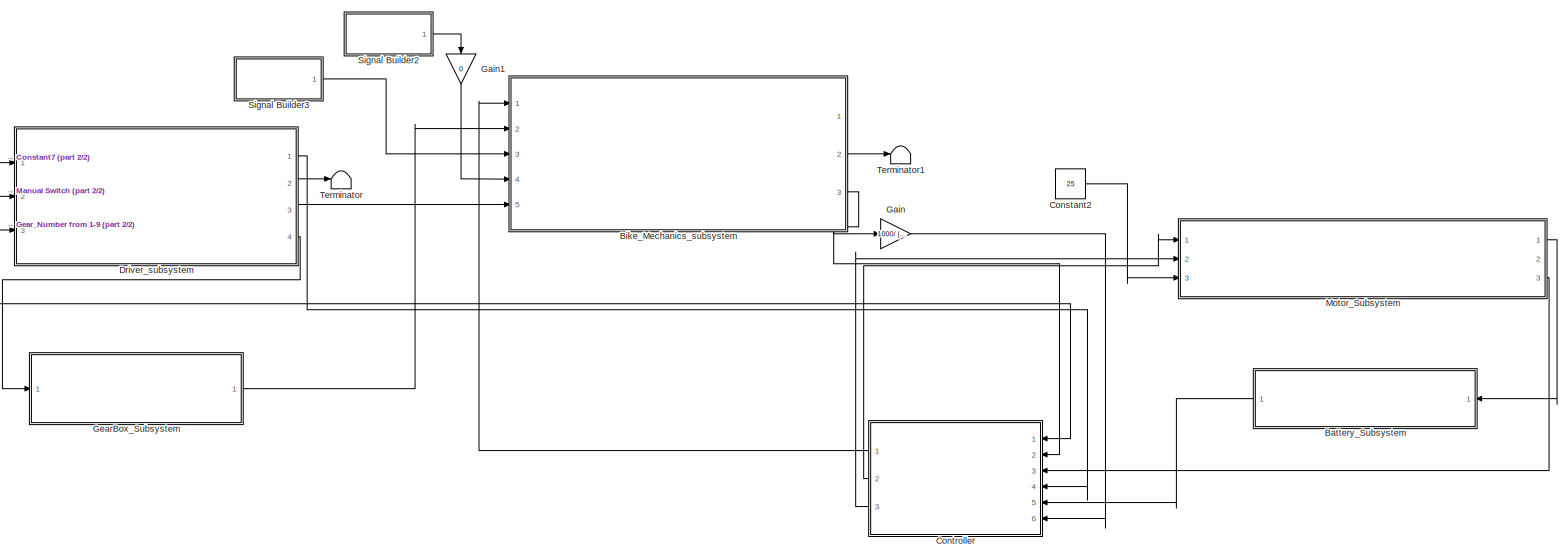
[diagram: root canvas - part 1/2, most of the canvas]
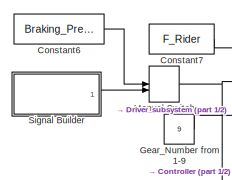
[diagram: root canvas - part 2/2, middle left region]
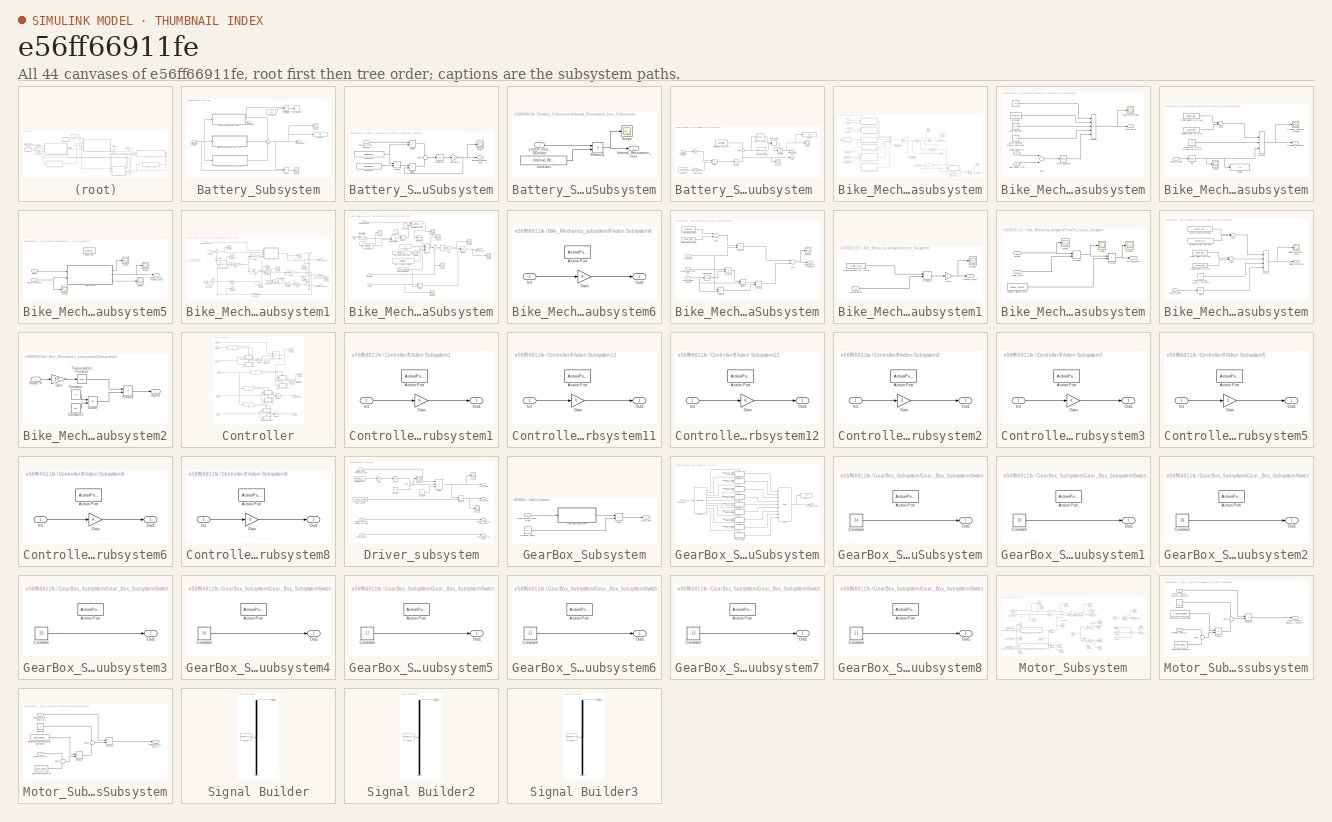
[diagram: thumbnail index - all 44 canvases of the model, root first then tree order]
MODEL slx_e56ff66911fe
KIND model
CONFIG AbsTol = auto
CONFIG EnableMultiTasking = off
CONFIG FixedStep = auto
CONFIG InitFcn = Rho_air= 1.225;\nC_d=0.9;\nA_d= 0.4;\nStatic_Friction_Coefficient =0.0015;\nDynamic_Friction_Coefficient= 0.0015;\nCyclist_weight=85;\nVehicle_mass = 25;\nTrailer_mass = 50;\ng = 9.81;\nWheel_mass = 0.25;\nTire_mass = 0.25;\nAbs = 1;\nBb=0.2;\nWheel_Radius = 0.3;\nF_Rider = 70;\nWheel_Inertia=0.0225;\nBraking_Pressure=100;\nCrank_Length = 0.150;\nAngle_of_crank = [0:1:360;0:1:360;]';\nNumber_of_brake_pad = 2;\nCoeffi...<+659ch>
CONFIG MaxStep = auto
CONFIG MinStep = auto
CONFIG RelTol = 1e-3
CONFIG SampleTimeConstraint = Unconstrained
CONFIG Solver = VariableStepAuto
CONFIG SolverName = VariableStepAuto
CONFIG StartTime = 0.0
CONFIG StopTime = 500
BLOCK [SubSystem] Battery_Subsystem
  Ports = [1, 1]
  RequestExecContextInheritance = off
BLOCK [Constant] Battery_Subsystem/Constant2
  Value = 27.5
BLOCK [SubSystem] Battery_Subsystem/Diffusion_Voltage_loss_Subsystem
  Ports = [1, 1]
  RequestExecContextInheritance = off
BLOCK [Gain] Battery_Subsystem/Diffusion_Voltage_loss_Subsystem/1RC Setup
  OutDataTypeStr = Inherit: Inherit via internal rule
  ParamDataTypeStr = Inherit: Inherit via internal rule
  SaturateOnIntegerOverflow = off
BLOCK [Constant] Battery_Subsystem/Diffusion_Voltage_loss_Subsystem/Constant2
  SampleTime = -1
  Value = Polarization_Capacitance
BLOCK [Constant] Battery_Subsystem/Diffusion_Voltage_loss_Subsystem/Constant3
  SampleTime = -1
  Value = Polarization_Resistance
BLOCK [Outport] Battery_Subsystem/Diffusion_Voltage_loss_Subsystem/Diffusion_Voltage_loss
  IconDisplay = Port number
  VectorParamsAs1DForOutWhenUnconnected = off
BLOCK [Product] Battery_Subsystem/Diffusion_Voltage_loss_Subsystem/Divide
  InputSameDT = off
  Inputs = */
  OutDataTypeStr = Inherit: Inherit via internal rule
  Ports = [2, 1]
  RndMeth = Floor
  SaturateOnIntegerOverflow = off
BLOCK [Product] Battery_Subsystem/Diffusion_Voltage_loss_Subsystem/Divide1
  InputSameDT = off
  Inputs = /*
  OutDataTypeStr = Inherit: Inherit via internal rule
  Ports = [2, 1]
  RndMeth = Floor
  SaturateOnIntegerOverflow = off
BLOCK [Integrator] Battery_Subsystem/Diffusion_Voltage_loss_Subsystem/Integrator
  Ports = [1, 1]
BLOCK [Product] Battery_Subsystem/Diffusion_Voltage_loss_Subsystem/Product
  InputSameDT = off
  OutDataTypeStr = Inherit: Inherit via internal rule
  Ports = [2, 1]
  RndMeth = Floor
  SaturateOnIntegerOverflow = off
BLOCK [Scope] Battery_Subsystem/Diffusion_Voltage_loss_Subsystem/Scope3
  Floating = off
  NumInputPorts = 1
  Ports = [1]
  ScopeSpecificationString = Simulink.scopes.TimeScopeBlockCfg('CurrentConfiguration', extmgr.ConfigurationSet(extmgr.Configuration('Core','General UI',true),extmgr.Configuration('Core','Source UI',true),extmgr.Configuration('Sources','WiredSimulink',true,'DataLoggingVariableName','ScopeData4'),extmgr.Configuration('Visuals','Time Domain',true,'SerializedDisplays',{struct('MinYLimReal','-0.02375','MaxYLimReal','0.21376','YLab...<+1480ch>
BLOCK [Sum] Battery_Subsystem/Diffusion_Voltage_loss_Subsystem/Sum1
  IconShape = round
  InputSameDT = off
  Inputs = +|-
  OutDataTypeStr = Inherit: Inherit via internal rule
  Ports = [2, 1]
  SaturateOnIntegerOverflow = off
BLOCK [Inport] Battery_Subsystem/Diffusion_Voltage_loss_Subsystem/current_from_DCmotor
  IconDisplay = Port number
BLOCK [Display] Battery_Subsystem/Display9
  Decimation = 1
  Ports = [1]
BLOCK [SubSystem] Battery_Subsystem/Internal_Resistance_loss_Subsystem
  Ports = [1, 1]
  RequestExecContextInheritance = off
BLOCK [Constant] Battery_Subsystem/Internal_Resistance_loss_Subsystem/Constant
  SampleTime = -1
  Value = Internal_Resistance
BLOCK [Outport] Battery_Subsystem/Internal_Resistance_loss_Subsystem/Internal_Resistance_loss
  IconDisplay = Port number
  VectorParamsAs1DForOutWhenUnconnected = off
BLOCK [Product] Battery_Subsystem/Internal_Resistance_loss_Subsystem/Product1
  InputSameDT = off
  OutDataTypeStr = Inherit: Inherit via internal rule
  Ports = [2, 1]
  RndMeth = Floor
  SaturateOnIntegerOverflow = off
BLOCK [Scope] Battery_Subsystem/Internal_Resistance_loss_Subsystem/Scope
  Floating = off
  NumInputPorts = 1
  Ports = [1]
  ScopeSpecificationString = Simulink.scopes.TimeScopeBlockCfg('CurrentConfiguration', extmgr.ConfigurationSet(extmgr.Configuration('Core','General UI',true),extmgr.Configuration('Core','Source UI',true),extmgr.Configuration('Sources','WiredSimulink',true,'DataLoggingVariableName','ScopeData2'),extmgr.Configuration('Visuals','Time Domain',true,'SerializedDisplays',{struct('MinYLimReal','0.09','MaxYLimReal','0.29','YLabelReal'...<+1414ch>
BLOCK [Inport] Battery_Subsystem/Internal_Resistance_loss_Subsystem/current_from_DCmotor
  IconDisplay = Port number
BLOCK [Terminator] Battery_Subsystem/Present SOC
BLOCK [Product] Battery_Subsystem/Product
  InputSameDT = off
  OutDataTypeStr = Inherit: Inherit via internal rule
  Ports = [2, 1]
  RndMeth = Floor
  SaturateOnIntegerOverflow = off
BLOCK [RelationalOperator] Battery_Subsystem/Relational Operator1
  InputSameDT = off
  Operator = <=
  OutDataTypeStr = boolean
  Ports = [2, 1]
  RndMeth = Simplest
BLOCK [Scope] Battery_Subsystem/Scope1
  Floating = off
  NumInputPorts = 1
  Ports = [1]
  ScopeSpecificationString = Simulink.scopes.TimeScopeBlockCfg('CurrentConfiguration', extmgr.ConfigurationSet(extmgr.Configuration('Core','General UI',true),extmgr.Configuration('Core','Source UI',true),extmgr.Configuration('Sources','WiredSimulink',true,'DataLoggingVariableName','ScopeData1'),extmgr.Configuration('Visuals','Time Domain',true,'SerializedDisplays',{struct('MinYLimReal','-163.87235','MaxYLimReal','1474.85113',...<+1493ch>
BLOCK [Scope] Battery_Subsystem/Scope3
  Floating = off
  NumInputPorts = 1
  Ports = [1]
  ScopeSpecificationString = Simulink.scopes.TimeScopeBlockCfg('CurrentConfiguration', extmgr.ConfigurationSet(extmgr.Configuration('Core','General UI',true),extmgr.Configuration('Core','Source UI',true),extmgr.Configuration('Sources','WiredSimulink',true,'DataLoggingVariableName','ScopeData6'),extmgr.Configuration('Visuals','Time Domain',true,'SerializedDisplays',{struct('MinYLimReal','33.04812','MaxYLimReal','42.21688','YLa...<+1478ch>
BLOCK [SubSystem] Battery_Subsystem/State_of_Charge_Subsystem 
  Ports = [1, 2]
  RequestExecContextInheritance = off
BLOCK [Gain] Battery_Subsystem/State_of_Charge_Subsystem / 
  Gain = 100
  OutDataTypeStr = Inherit: Inherit via internal rule
  ParamDataTypeStr = Inherit: Inherit via internal rule
  SaturateOnIntegerOverflow = off
BLOCK [Lookup_n-D] Battery_Subsystem/State_of_Charge_Subsystem /1-D Lookup Table
  BreakpointsForDimension1 = [10 12 15 20 30 45 60 75 85 95 100]
  InternalRulePriority = Speed
  NumberOfTableDimensions = 1
  Ports = [1, 1]
  RndMeth = Simplest
  Table = [2.75\n2.964\n3.233\n3.417\n3.65\n3.7\n3.789\n3.9269\n4.017\n4.147\n4.2\n]
BLOCK [Lookup_n-D] Battery_Subsystem/State_of_Charge_Subsystem /1-D Lookup Table1
  BreakpointsForDimension1 = [-0.02\n0.08\n0.18\n0.28\n0.38\n0.48\n0.58\n0.68\n0.78\n0.88\n0.98\n1.08\n1.18\n1.28\n1.38\n1.48\n1.58\n1.68\n1.78\n1.88\n1.98\n2.08\n2.18\n2.28\n2.38\n2.48\n2.58\n2.68\n2.78\n2.88\n2.98\n3.08\n3.18\n3.28\n3.38\n3.48\n3.58\n3.68\n3.78\n3.88\n3.98\n4.08\n4.18\n4.28\n4.38\n4.48\n4.58\n4.68\n4.78\n4.88\n4.98\n5.08\n5.18\n5.28\n5.38\n5.48\n5.58\n5.68\n5.78\n5.88\n5.98\n6.08\n6.19\n6.29\n6.39\n6.49\n6.59\n6.69\n6.79\n6.89\n6.99\n7.09\n7.19\n7.29\n7.39\n7.49\n7.59\n7.69\n7.79\n7.8...<+5502ch>
  InternalRulePriority = Speed
  NumberOfTableDimensions = 1
  Ports = [1, 1]
  RndMeth = Simplest
  Table = [26.9\n27.2\n27.4\n27.6\n27.9\n28.1\n28.3\n28.5\n28.7\n28.9\n29.1\n29.3\n29.5\n29.6\n29.8\n30\n30.1\n30.3\n30.4\n30.6\n30.7\n30.8\n31\n31.1\n31.2\n31.3\n31.4\n31.5\n31.6\n31.7\n31.8\n31.9\n32\n32.1\n32.2\n32.2\n32.3\n32.4\n32.4\n32.5\n32.6\n32.6\n32.7\n32.7\n32.8\n32.8\n32.9\n32.9\n32.9\n33\n33\n33.1\n33.1\n33.1\n33.1\n33.2\n33.2\n33.2\n33.2\n33.3\n33.3\n33.3\n33.3\n33.3\n33.3\n33.4\n33.4\n33.4\n33.4\n33.4\n33.4\n33.4\n33.5\n33.5\n33.5\n33.5\n33.5\n33.5\n33.5\n33.6\n33.6\n33.6...<+4398ch>
BLOCK [Gain] Battery_Subsystem/State_of_Charge_Subsystem /Ah to coulomb
  Gain = 3600
  OutDataTypeStr = Inherit: Inherit via internal rule
  ParamDataTypeStr = Inherit: Inherit via internal rule
  SaturateOnIntegerOverflow = off
BLOCK [Constant] Battery_Subsystem/State_of_Charge_Subsystem /Constant
  SampleTime = -1
  Value = capacity
BLOCK [Display] Battery_Subsystem/State_of_Charge_Subsystem /Display
  Decimation = 1
  Ports = [1]
BLOCK [Product] Battery_Subsystem/State_of_Charge_Subsystem /Divide
  InputSameDT = off
  Inputs = */
  OutDataTypeStr = Inherit: Inherit via internal rule
  Ports = [2, 1]
  RndMeth = Floor
  SaturateOnIntegerOverflow = off
BLOCK [Constant] Battery_Subsystem/State_of_Charge_Subsystem /Initial State of charge (100%)
  SampleTime = -1
  Value = SOC_initial
BLOCK [Integrator] Battery_Subsystem/State_of_Charge_Subsystem /Integrator1
  LowerSaturationLimit = 0
  Ports = [1, 1]
  UpperSaturationLimit = 100
BLOCK [ManualSwitch] Battery_Subsystem/State_of_Charge_Subsystem /Manual Switch
BLOCK [Outport] Battery_Subsystem/State_of_Charge_Subsystem /Open_circuit_voltage
  IconDisplay = Port number
  VectorParamsAs1DForOutWhenUnconnected = off
BLOCK [Outport] Battery_Subsystem/State_of_Charge_Subsystem /SOC
  IconDisplay = Port number
  Port = 2
  VectorParamsAs1DForOutWhenUnconnected = off
BLOCK [Saturate] Battery_Subsystem/State_of_Charge_Subsystem /Saturation
  InputPortMap = u0
  LowerLimit = 0
  Ports = [1, 1]
  UpperLimit = inf
BLOCK [Scope] Battery_Subsystem/State_of_Charge_Subsystem /Scope
  Floating = off
  NumInputPorts = 1
  Ports = [1]
  ScopeSpecificationString = Simulink.scopes.TimeScopeBlockCfg('CurrentConfiguration', extmgr.ConfigurationSet(extmgr.Configuration('Core','General UI',true),extmgr.Configuration('Core','Source UI',true),extmgr.Configuration('Sources','WiredSimulink',true,'DataLoggingVariableName','ScopeData1'),extmgr.Configuration('Visuals','Time Domain',true,'SerializedDisplays',{struct('MinYLimReal','25.77491','MaxYLimReal','43.02501','YLa...<+1515ch>
BLOCK [Scope] Battery_Subsystem/State_of_Charge_Subsystem /Scope1
  Floating = off
  NumInputPorts = 1
  Ports = [1]
  ScopeSpecificationString = Simulink.scopes.TimeScopeBlockCfg('CurrentConfiguration', extmgr.ConfigurationSet(extmgr.Configuration('Core','General UI',true),extmgr.Configuration('Core','Source UI',true),extmgr.Configuration('Sources','WiredSimulink',true,'DataLoggingVariableName','ScopeData1'),extmgr.Configuration('Visuals','Time Domain',true,'SerializedDisplays',{struct('MinYLimReal','-3.52764','MaxYLimReal','31.7488','YLab...<+1491ch>
BLOCK [Sum] Battery_Subsystem/State_of_Charge_Subsystem /Sum2
  IconShape = round
  InputSameDT = off
  Inputs = +|-
  OutDataTypeStr = Inherit: Inherit via internal rule
  Ports = [2, 1]
  SaturateOnIntegerOverflow = off
BLOCK [Inport] Battery_Subsystem/State_of_Charge_Subsystem /current_from_DCmotor
  IconDisplay = Port number
BLOCK [Stop] Battery_Subsystem/Stop Simulation1
BLOCK [Sum] Battery_Subsystem/Sum
  IconShape = round
  InputSameDT = off
  Inputs = +--
  OutDataTypeStr = Inherit: Inherit via internal rule
  Ports = [3, 1]
  SaturateOnIntegerOverflow = off
BLOCK [Outport] Battery_Subsystem/Terminal Voltage
  IconDisplay = Port number
  VectorParamsAs1DForOutWhenUnconnected = off
BLOCK [Inport] Battery_Subsystem/current_from_DCmotor
  IconDisplay = Port number
BLOCK [SubSystem] Bike_Mechanics_subsystem
  Ports = [5, 3]
  RequestExecContextInheritance = off
BLOCK [Outport] Bike_Mechanics_subsystem/Acceleration
  IconDisplay = Port number
  Port = 2
  VectorParamsAs1DForOutWhenUnconnected = off
BLOCK [SubSystem] Bike_Mechanics_subsystem/Aerodynamic_Drag_subsystem
  Ports = [2, 1]
  RequestExecContextInheritance = off
BLOCK [Constant] Bike_Mechanics_subsystem/Aerodynamic_Drag_subsystem/.
  Value = 1/2
BLOCK [Constant] Bike_Mechanics_subsystem/Aerodynamic_Drag_subsystem/Air_density
  Value = Rho_air
BLOCK [Constant] Bike_Mechanics_subsystem/Aerodynamic_Drag_subsystem/Cross sectional area//Reference area
  Value = A_d
BLOCK [Constant] Bike_Mechanics_subsystem/Aerodynamic_Drag_subsystem/Drag Coeffient
  Value = C_d
BLOCK [Outport] Bike_Mechanics_subsystem/Aerodynamic_Drag_subsystem/Drag_Force 
  IconDisplay = Port number
  VectorParamsAs1DForOutWhenUnconnected = off
BLOCK [Scope] Bike_Mechanics_subsystem/Aerodynamic_Drag_subsystem/Drag_force_scope
  Floating = off
  NumInputPorts = 1
  Ports = [1]
  ScopeSpecificationString = Simulink.scopes.TimeScopeBlockCfg('CurrentConfiguration', extmgr.ConfigurationSet(extmgr.Configuration('Core','General UI',true),extmgr.Configuration('Core','Source UI',true),extmgr.Configuration('Sources','WiredSimulink',true),extmgr.Configuration('Visuals','Time Domain',true,'SerializedDisplays',{struct('MinYLimReal','-17.92252','MaxYLimReal','161.30264','YLabelReal','','MinYLimMag','0.00000','M...<+1362ch>
BLOCK [Math] Bike_Mechanics_subsystem/Aerodynamic_Drag_subsystem/Math Function1
  Operator = square
  Ports = [1, 1]
BLOCK [Product] Bike_Mechanics_subsystem/Aerodynamic_Drag_subsystem/Product
  InputSameDT = off
  Inputs = 5
  OutDataTypeStr = Inherit: Inherit via internal rule
  Ports = [5, 1]
  RndMeth = Floor
  SaturateOnIntegerOverflow = off
BLOCK [Sum] Bike_Mechanics_subsystem/Aerodynamic_Drag_subsystem/Sum
  InputSameDT = off
  Inputs = +-
  OutDataTypeStr = Inherit: Inherit via internal rule
  Ports = [2, 1]
  SaturateOnIntegerOverflow = off
BLOCK [Inport] Bike_Mechanics_subsystem/Aerodynamic_Drag_subsystem/Vehicle Speed (V)
  IconDisplay = Port number
BLOCK [Inport] Bike_Mechanics_subsystem/Aerodynamic_Drag_subsystem/Wind Speed (V_w) 
  IconDisplay = Port number
  Port = 2
BLOCK [Inport] Bike_Mechanics_subsystem/Brake pressure
  IconDisplay = Port number
  Port = 5
BLOCK [Constant] Bike_Mechanics_subsystem/Constant
  SampleTime = -1
  Value = Vehicle_mass
BLOCK [Outport] Bike_Mechanics_subsystem/Distance_Travelled
  IconDisplay = Port number
  VectorParamsAs1DForOutWhenUnconnected = off
BLOCK [Product] Bike_Mechanics_subsystem/Divide
  InputSameDT = off
  Inputs = */
  OutDataTypeStr = Inherit: Inherit via internal rule
  Ports = [2, 1]
  RndMeth = Floor
  SaturateOnIntegerOverflow = off
BLOCK [From] Bike_Mechanics_subsystem/From
  GotoTag = Acceleration
BLOCK [From] Bike_Mechanics_subsystem/From1
  GotoTag = Vehicle_speed
BLOCK [Inport] Bike_Mechanics_subsystem/Gear_ratio
  IconDisplay = Port number
  Port = 2
BLOCK [Goto] Bike_Mechanics_subsystem/Goto
  GotoTag = Vehicle_speed
BLOCK [Goto] Bike_Mechanics_subsystem/Goto1
  GotoTag = Acceleration
BLOCK [SubSystem] Bike_Mechanics_subsystem/Gradient_Resistance_subsystem
  Ports = [1, 1]
  RequestExecContextInheritance = off
BLOCK [Constant] Bike_Mechanics_subsystem/Gradient_Resistance_subsystem/Acceleration due to Gravity (g) m//s^2
  SampleTime = -1
  Value = g
BLOCK [Inport] Bike_Mechanics_subsystem/Gradient_Resistance_subsystem/Angle_of_slope
  IconDisplay = Port number
BLOCK [Trigonometry] Bike_Mechanics_subsystem/Gradient_Resistance_subsystem/Cos
  Ports = [1, 1]
BLOCK [Constant] Bike_Mechanics_subsystem/Gradient_Resistance_subsystem/Cyclist_weight (M) in Kg
  SampleTime = -1
  Value = Cyclist_weight
BLOCK [Display] Bike_Mechanics_subsystem/Gradient_Resistance_subsystem/Display
  Decimation = 1
  Ports = [1]
BLOCK [Outport] Bike_Mechanics_subsystem/Gradient_Resistance_subsystem/Gradient_resistance
  IconDisplay = Port number
  VectorParamsAs1DForOutWhenUnconnected = off
BLOCK [Scope] Bike_Mechanics_subsystem/Gradient_Resistance_subsystem/Gradient_resistance_scope
  Floating = off
  NumInputPorts = 1
  Ports = [1]
  ScopeSpecificationString = Simulink.scopes.TimeScopeBlockCfg('CurrentConfiguration', extmgr.ConfigurationSet(extmgr.Configuration('Core','General UI',true),extmgr.Configuration('Core','Source UI',true),extmgr.Configuration('Sources','WiredSimulink',true),extmgr.Configuration('Visuals','Time Domain',true,'SerializedDisplays',{struct('MinYLimReal','2.04176','MaxYLimReal','4.04176','YLabelReal','','MinYLimMag','2.04176','MaxYL...<+1325ch>
BLOCK [Product] Bike_Mechanics_subsystem/Gradient_Resistance_subsystem/Product
  InputSameDT = off
  Inputs = 3
  OutDataTypeStr = Inherit: Inherit via internal rule
  Ports = [3, 1]
  RndMeth = Floor
  SaturateOnIntegerOverflow = off
BLOCK [Scope] Bike_Mechanics_subsystem/Gradient_Resistance_subsystem/Scope
  Floating = off
  NumInputPorts = 1
  Ports = [1]
  ScopeSpecificationString = Simulink.scopes.TimeScopeBlockCfg('CurrentConfiguration', extmgr.ConfigurationSet(extmgr.Configuration('Core','General UI',true),extmgr.Configuration('Core','Source UI',true),extmgr.Configuration('Sources','WiredSimulink',true,'DataLoggingVariableName','ScopeData15'),extmgr.Configuration('Visuals','Time Domain',true),extmgr.Configuration('Tools','Plot Navigation',true),extmgr.Configuration('Tools'...<+41ch>
BLOCK [Sum] Bike_Mechanics_subsystem/Gradient_Resistance_subsystem/Sum2
  InputSameDT = off
  OutDataTypeStr = Inherit: Inherit via internal rule
  Ports = [2, 1]
  SaturateOnIntegerOverflow = off
BLOCK [Constant] Bike_Mechanics_subsystem/Gradient_Resistance_subsystem/Vehicle_mass (M) in Kg
  SampleTime = -1
  Value = Vehicle_mass
BLOCK [SubSystem] Bike_Mechanics_subsystem/If Action Subsystem5
  Ports = [2, 1, 0, 0, 0, 0, 0, 1]
  RequestExecContextInheritance = off
  TreatAsAtomicUnit = on
BLOCK [ActionPort] Bike_Mechanics_subsystem/If Action Subsystem5/Action Port
  ActionPortLabel = if(u1 > 0)
BLOCK [Inport] Bike_Mechanics_subsystem/If Action Subsystem5/Brake pressure
  IconDisplay = Port number
  Port = 2
BLOCK [Scope] Bike_Mechanics_subsystem/If Action Subsystem5/Scope
  Floating = off
  NumInputPorts = 1
  Ports = [1]
  ScopeSpecificationString = Simulink.scopes.TimeScopeBlockCfg('CurrentConfiguration', extmgr.ConfigurationSet(extmgr.Configuration('Core','General UI',true),extmgr.Configuration('Core','Source UI',true),extmgr.Configuration('Sources','WiredSimulink',true,'DataLoggingVariableName','ScopeData7'),extmgr.Configuration('Visuals','Time Domain',true,'SerializedDisplays',{struct('MinYLimReal','90.00000','MaxYLimReal','110.00000','YL...<+1443ch>
BLOCK [Scope] Bike_Mechanics_subsystem/If Action Subsystem5/Scope1
  Floating = off
  NumInputPorts = 1
  Ports = [1]
  ScopeSpecificationString = Simulink.scopes.TimeScopeBlockCfg('CurrentConfiguration', extmgr.ConfigurationSet(extmgr.Configuration('Core','General UI',true),extmgr.Configuration('Core','Source UI',true),extmgr.Configuration('Sources','WiredSimulink',true,'DataLoggingVariableName','ScopeData4'),extmgr.Configuration('Visuals','Time Domain',true,'SerializedDisplays',{struct('MinYLimReal','-3.00609','MaxYLimReal','27.05485','YLa...<+1426ch>
BLOCK [Scope] Bike_Mechanics_subsystem/If Action Subsystem5/Scope2
  Floating = off
  NumInputPorts = 1
  Ports = [1]
  ScopeSpecificationString = Simulink.scopes.TimeScopeBlockCfg('CurrentConfiguration', extmgr.ConfigurationSet(extmgr.Configuration('Core','General UI',true),extmgr.Configuration('Core','Source UI',true),extmgr.Configuration('Sources','WiredSimulink',true,'DataLoggingVariableName','ScopeData5'),extmgr.Configuration('Visuals','Time Domain',true,'SerializedDisplays',{struct('MinYLimReal','-3.00422','MaxYLimReal','27.05464','YLa...<+1449ch>
BLOCK [Scope] Bike_Mechanics_subsystem/If Action Subsystem5/Scope3
  Floating = off
  NumInputPorts = 1
  Ports = [1]
  ScopeSpecificationString = Simulink.scopes.TimeScopeBlockCfg('CurrentConfiguration', extmgr.ConfigurationSet(extmgr.Configuration('Core','General UI',true),extmgr.Configuration('Core','Source UI',true),extmgr.Configuration('Sources','WiredSimulink',true,'DataLoggingVariableName','ScopeData6'),extmgr.Configuration('Visuals','Time Domain',true,'SerializedDisplays',{struct('MinYLimReal','-0.26246','MaxYLimReal','2.36217','YLab...<+1452ch>
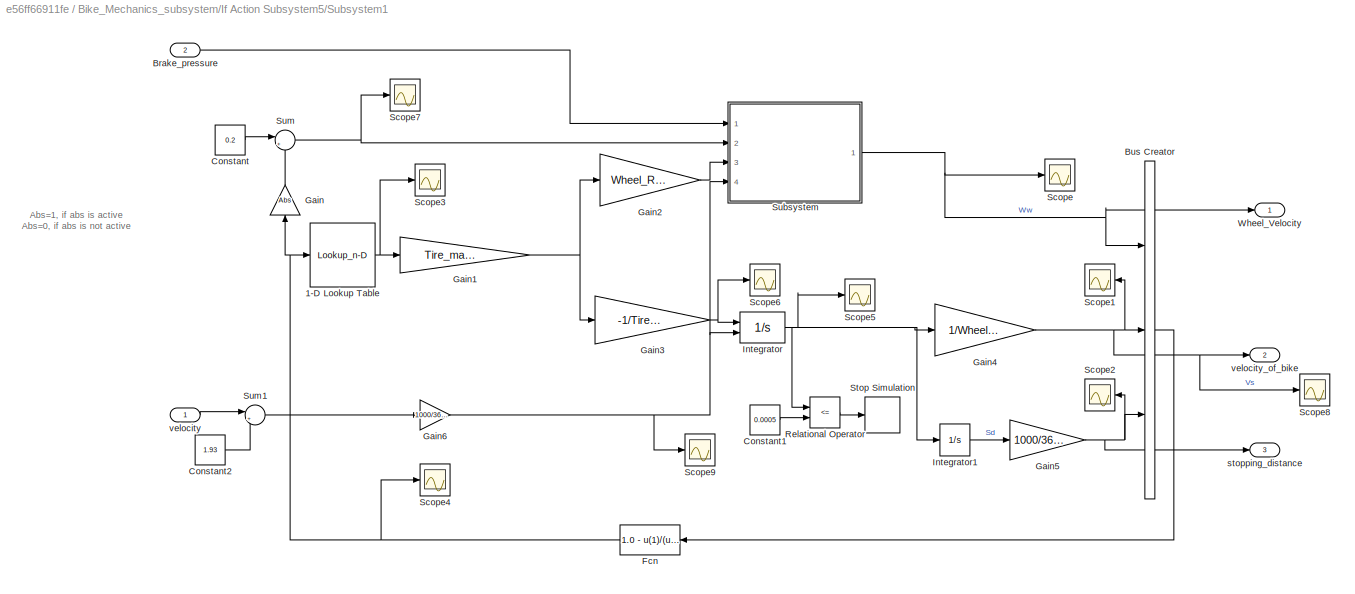
BLOCK [SubSystem] Bike_Mechanics_subsystem/If Action Subsystem5/Subsystem1
  Ports = [2, 3]
  RequestExecContextInheritance = off
BLOCK [Lookup_n-D] Bike_Mechanics_subsystem/If Action Subsystem5/Subsystem1/1-D Lookup Table
  BreakpointsForDimension1 = [0	0.0500000000000000	0.100000000000000	0.150000000000000	0.200000000000000	0.250000000000000	0.300000000000000	0.350000000000000	0.400000000000000	0.450000000000000	0.500000000000000	0.550000000000000	0.600000000000000	0.650000000000000	0.700000000000000	0.750000000000000	0.800000000000000	0.850000000000000	0.900000000000000	0.950000000000000	1]
  InternalRulePriority = Speed
  NumberOfTableDimensions = 1
  Ports = [1, 1]
  RndMeth = Simplest
  Table = [0	0.400000000000000	0.800000000000000	0.970000000000000	1	0.980000000000000	0.960000000000000	0.940000000000000	0.920000000000000	0.900000000000000	0.880000000000000	0.855000000000000	0.830000000000000	0.810000000000000	0.790000000000000	0.770000000000000	0.750000000000000	0.730000000000000	0.720000000000000	0.710000000000000	0.700000000000000]
BLOCK [Inport] Bike_Mechanics_subsystem/If Action Subsystem5/Subsystem1/Brake_pressure
  IconDisplay = Port number
  Port = 2
BLOCK [BusCreator] Bike_Mechanics_subsystem/If Action Subsystem5/Subsystem1/Bus Creator
  DisplayOption = bar
  InheritFromInputs = on
  Inputs = 3
  Ports = [3, 1]
BLOCK [Constant] Bike_Mechanics_subsystem/If Action Subsystem5/Subsystem1/Constant
  Value = 0.2
BLOCK [Constant] Bike_Mechanics_subsystem/If Action Subsystem5/Subsystem1/Constant1
  Value = 0.0005
BLOCK [Constant] Bike_Mechanics_subsystem/If Action Subsystem5/Subsystem1/Constant2
  Value = 1.93
BLOCK [Fcn] Bike_Mechanics_subsystem/If Action Subsystem5/Subsystem1/Fcn
  Expr = 1.0 - u(1)/(u(2)+ (u(2)==0) * eps)
BLOCK [Gain] Bike_Mechanics_subsystem/If Action Subsystem5/Subsystem1/Gain
  Gain = Abs
  OutDataTypeStr = Inherit: Inherit via internal rule
  ParamDataTypeStr = Inherit: Inherit via internal rule
  SaturateOnIntegerOverflow = off
BLOCK [Gain] Bike_Mechanics_subsystem/If Action Subsystem5/Subsystem1/Gain1
  Gain = Tire_mass * g /2
  OutDataTypeStr = Inherit: Inherit via internal rule
  ParamDataTypeStr = Inherit: Inherit via internal rule
  SaturateOnIntegerOverflow = off
BLOCK [Gain] Bike_Mechanics_subsystem/If Action Subsystem5/Subsystem1/Gain2
  Gain = Wheel_Radius
  OutDataTypeStr = Inherit: Inherit via internal rule
  ParamDataTypeStr = Inherit: Inherit via internal rule
  SaturateOnIntegerOverflow = off
BLOCK [Gain] Bike_Mechanics_subsystem/If Action Subsystem5/Subsystem1/Gain3
  Gain = -1/Tire_mass
  OutDataTypeStr = Inherit: Inherit via internal rule
  ParamDataTypeStr = Inherit: Inherit via internal rule
  SaturateOnIntegerOverflow = off
BLOCK [Gain] Bike_Mechanics_subsystem/If Action Subsystem5/Subsystem1/Gain4
  Gain = 1/Wheel_Radius
  OutDataTypeStr = Inherit: Inherit via internal rule
  ParamDataTypeStr = Inherit: Inherit via internal rule
  SaturateOnIntegerOverflow = off
BLOCK [Gain] Bike_Mechanics_subsystem/If Action Subsystem5/Subsystem1/Gain5
  Gain = 1000/3600
  OutDataTypeStr = Inherit: Inherit via internal rule
  ParamDataTypeStr = Inherit: Inherit via internal rule
  SaturateOnIntegerOverflow = off
BLOCK [Gain] Bike_Mechanics_subsystem/If Action Subsystem5/Subsystem1/Gain6
  Gain = 1000/3600
  OutDataTypeStr = Inherit: Inherit via internal rule
  ParamDataTypeStr = Inherit: Inherit via internal rule
  SaturateOnIntegerOverflow = off
BLOCK [Integrator] Bike_Mechanics_subsystem/If Action Subsystem5/Subsystem1/Integrator
  InitialCondition = V
  InitialConditionSource = external
  LimitOutput = on
  LowerSaturationLimit = 0
  Ports = [2, 1]
  UpperSaturationLimit = 1000
  ZeroCross = off
BLOCK [Integrator] Bike_Mechanics_subsystem/If Action Subsystem5/Subsystem1/Integrator1
  Ports = [1, 1]
BLOCK [RelationalOperator] Bike_Mechanics_subsystem/If Action Subsystem5/Subsystem1/Relational Operator
  InputSameDT = off
  Operator = <=
  OutDataTypeStr = boolean
  Ports = [2, 1]
  RndMeth = Simplest
BLOCK [Scope] Bike_Mechanics_subsystem/If Action Subsystem5/Subsystem1/Scope
  Floating = off
  NumInputPorts = 1
  Ports = [1]
  ScopeSpecificationString = Simulink.scopes.TimeScopeBlockCfg('CurrentConfiguration', extmgr.ConfigurationSet(extmgr.Configuration('Core','General UI',true),extmgr.Configuration('Core','Source UI',true),extmgr.Configuration('Sources','WiredSimulink',true),extmgr.Configuration('Visuals','Time Domain',true,'SerializedDisplays',{struct('MinYLimReal','-2.8169','MaxYLimReal','25.35208','YLabelReal','','MinYLimMag','0.00000','MaxY...<+1395ch>
BLOCK [Scope] Bike_Mechanics_subsystem/If Action Subsystem5/Subsystem1/Scope1
  Floating = off
  NumInputPorts = 1
  Ports = [1]
  ScopeSpecificationString = Simulink.scopes.TimeScopeBlockCfg('CurrentConfiguration', extmgr.ConfigurationSet(extmgr.Configuration('Core','General UI',true),extmgr.Configuration('Core','Source UI',true),extmgr.Configuration('Sources','WiredSimulink',true,'DataLoggingVariableName','ScopeData1'),extmgr.Configuration('Visuals','Time Domain',true,'SerializedDisplays',{struct('MinYLimReal','-1.93038','MaxYLimReal','32.49507','YLa...<+1436ch>
BLOCK [Scope] Bike_Mechanics_subsystem/If Action Subsystem5/Subsystem1/Scope2
  Floating = off
  NumInputPorts = 1
  Ports = [1]
  ScopeSpecificationString = Simulink.scopes.TimeScopeBlockCfg('CurrentConfiguration', extmgr.ConfigurationSet(extmgr.Configuration('Core','General UI',true),extmgr.Configuration('Core','Source UI',true),extmgr.Configuration('Sources','WiredSimulink',true,'DataLoggingVariableName','ScopeData2'),extmgr.Configuration('Visuals','Time Domain',true,'SerializedDisplays',{struct('MinYLimReal','-0.26246','MaxYLimReal','2.36217','YLab...<+1389ch>
BLOCK [Scope] Bike_Mechanics_subsystem/If Action Subsystem5/Subsystem1/Scope3
  Floating = off
  NumInputPorts = 1
  Ports = [1]
  ScopeSpecificationString = Simulink.scopes.TimeScopeBlockCfg('CurrentConfiguration', extmgr.ConfigurationSet(extmgr.Configuration('Core','General UI',true),extmgr.Configuration('Core','Source UI',true),extmgr.Configuration('Sources','WiredSimulink',true,'DataLoggingVariableName','ScopeData5'),extmgr.Configuration('Visuals','Time Domain',true,'SerializedDisplays',{struct('MinYLimReal','-3.68589','MaxYLimReal','1.52065','YLab...<+1400ch>
BLOCK [Scope] Bike_Mechanics_subsystem/If Action Subsystem5/Subsystem1/Scope4
  Floating = off
  NumInputPorts = 1
  Ports = [1]
  ScopeSpecificationString = Simulink.scopes.TimeScopeBlockCfg('CurrentConfiguration', extmgr.ConfigurationSet(extmgr.Configuration('Core','General UI',true),extmgr.Configuration('Core','Source UI',true),extmgr.Configuration('Sources','WiredSimulink',true,'DataLoggingVariableName','ScopeData7'),extmgr.Configuration('Visuals','Time Domain',true,'SerializedDisplays',{struct('MinYLimReal','-0.125','MaxYLimReal','1.125','YLabelRe...<+1423ch>
BLOCK [Scope] Bike_Mechanics_subsystem/If Action Subsystem5/Subsystem1/Scope5
  Floating = off
  NumInputPorts = 1
  Ports = [1]
  ScopeSpecificationString = Simulink.scopes.TimeScopeBlockCfg('CurrentConfiguration', extmgr.ConfigurationSet(extmgr.Configuration('Core','General UI',true),extmgr.Configuration('Core','Source UI',true),extmgr.Configuration('Sources','WiredSimulink',true,'DataLoggingVariableName','ScopeData1'),extmgr.Configuration('Visuals','Time Domain',true,'SerializedDisplays',{struct('MinYLimReal','-0.90127','MaxYLimReal','8.11639','YLab...<+1421ch>
BLOCK [Scope] Bike_Mechanics_subsystem/If Action Subsystem5/Subsystem1/Scope6
  Floating = off
  NumInputPorts = 1
  Ports = [1]
  ScopeSpecificationString = Simulink.scopes.TimeScopeBlockCfg('CurrentConfiguration', extmgr.ConfigurationSet(extmgr.Configuration('Core','General UI',true),extmgr.Configuration('Core','Source UI',true),extmgr.Configuration('Sources','WiredSimulink',true,'DataLoggingVariableName','ScopeData2'),extmgr.Configuration('Visuals','Time Domain',true,'SerializedDisplays',{struct('MinYLimReal','-5.51796','MaxYLimReal','0.61311','YLab...<+1389ch>
BLOCK [Scope] Bike_Mechanics_subsystem/If Action Subsystem5/Subsystem1/Scope7
  Floating = off
  NumInputPorts = 1
  Ports = [1]
  ScopeSpecificationString = Simulink.scopes.TimeScopeBlockCfg('CurrentConfiguration', extmgr.ConfigurationSet(extmgr.Configuration('Core','General UI',true),extmgr.Configuration('Core','Source UI',true),extmgr.Configuration('Sources','WiredSimulink',true,'DataLoggingVariableName','ScopeData1'),extmgr.Configuration('Visuals','Time Domain',true,'SerializedDisplays',{struct('MinYLimReal','-1.00603','MaxYLimReal','1.0543','YLabe...<+1383ch>
BLOCK [Scope] Bike_Mechanics_subsystem/If Action Subsystem5/Subsystem1/Scope8
  Floating = off
  NumInputPorts = 1
  Ports = [1]
  ScopeSpecificationString = Simulink.scopes.TimeScopeBlockCfg('CurrentConfiguration', extmgr.ConfigurationSet(extmgr.Configuration('Core','General UI',true),extmgr.Configuration('Core','Source UI',true),extmgr.Configuration('Sources','WiredSimulink',true,'DataLoggingVariableName','ScopeData5'),extmgr.Configuration('Visuals','Time Domain',true,'SerializedDisplays',{struct('MinYLimReal','-2.81502','MaxYLimReal','25.35187','YLa...<+1409ch>
BLOCK [Scope] Bike_Mechanics_subsystem/If Action Subsystem5/Subsystem1/Scope9
  Floating = off
  NumInputPorts = 1
  Ports = [1]
  ScopeSpecificationString = Simulink.scopes.TimeScopeBlockCfg('CurrentConfiguration', extmgr.ConfigurationSet(extmgr.Configuration('Core','General UI',true),extmgr.Configuration('Core','Source UI',true),extmgr.Configuration('Sources','WiredSimulink',true,'DataLoggingVariableName','ScopeData7'),extmgr.Configuration('Visuals','Time Domain',true,'SerializedDisplays',{struct('MinYLimReal','6.74669','MaxYLimReal','6.746762','YLab...<+1391ch>
BLOCK [Stop] Bike_Mechanics_subsystem/If Action Subsystem5/Subsystem1/Stop Simulation
BLOCK [SubSystem] Bike_Mechanics_subsystem/If Action Subsystem5/Subsystem1/Subsystem
  Ports = [4, 1]
  RequestExecContextInheritance = off
BLOCK [Inport] Bike_Mechanics_subsystem/If Action Subsystem5/Subsystem1/Subsystem/Brake Pressure
  IconDisplay = Port number
BLOCK [Constant] Bike_Mechanics_subsystem/If Action Subsystem5/Subsystem1/Subsystem/Brake_coefficient_of_friction
  Value = Coefficient_of_Brake_friction
BLOCK [Constant] Bike_Mechanics_subsystem/If Action Subsystem5/Subsystem1/Subsystem/Constant
BLOCK [Constant] Bike_Mechanics_subsystem/If Action Subsystem5/Subsystem1/Subsystem/Constant2
  Value = 0
BLOCK [Constant] Bike_Mechanics_subsystem/If Action Subsystem5/Subsystem1/Subsystem/Disc_Brake_Pad_Area
  Value = Effective_Radius_of_Disc
BLOCK [Product] Bike_Mechanics_subsystem/If Action Subsystem5/Subsystem1/Subsystem/Divide
  InputSameDT = off
  Inputs = */
  OutDataTypeStr = Inherit: Inherit via internal rule
  Ports = [2, 1]
  RndMeth = Floor
  SaturateOnIntegerOverflow = off
BLOCK [Gain] Bike_Mechanics_subsystem/If Action Subsystem5/Subsystem1/Subsystem/Gain
  Gain = 1/Wheel_Inertia
  OutDataTypeStr = Inherit: Inherit via internal rule
  ParamDataTypeStr = Inherit: Inherit via internal rule
  SaturateOnIntegerOverflow = off
BLOCK [Integrator] Bike_Mechanics_subsystem/If Action Subsystem5/Subsystem1/Subsystem/Integrator
  InitialCondition = V/Wheel_Radius
  InitialConditionSource = external
  LimitOutput = on
  LowerSaturationLimit = 0
  Ports = [2, 1]
  UpperSaturationLimit = 1000
BLOCK [Integrator] Bike_Mechanics_subsystem/If Action Subsystem5/Subsystem1/Subsystem/Integrator1
  Ports = [1, 1]
  UpperSaturationLimit = Braking_Pressure
BLOCK [ManualSwitch] Bike_Mechanics_subsystem/If Action Subsystem5/Subsystem1/Subsystem/Manual Switch
  CurrentSetting = 0
BLOCK [Reference] Bike_Mechanics_subsystem/If Action Subsystem5/Subsystem1/Subsystem/PID Controller  REF=simulink/Continuous/PID Controller
  Ports = [1, 1]
  SourceBlock = simulink/Continuous/PID Controller
  SourceProductBaseCode = SL
  SourceProductName = Simulink
  SourceType = PID 1dof
BLOCK [Product] Bike_Mechanics_subsystem/If Action Subsystem5/Subsystem1/Subsystem/Product
  InputSameDT = off
  OutDataTypeStr = Inherit: Inherit via internal rule
  Ports = [2, 1]
  RndMeth = Floor
  SaturateOnIntegerOverflow = off
BLOCK [Product] Bike_Mechanics_subsystem/If Action Subsystem5/Subsystem1/Subsystem/Product1
  InputSameDT = off
  Inputs = 5
  OutDataTypeStr = Inherit: Inherit via internal rule
  Ports = [5, 1]
  RndMeth = Floor
  SaturateOnIntegerOverflow = off
BLOCK [Reference] Bike_Mechanics_subsystem/If Action Subsystem5/Subsystem1/Subsystem/Saturation Dynamic  REF=simulink/Discontinuities/Saturation
Dynamic
  Ports = [3, 1]
  SourceBlock = simulink/Discontinuities/Saturation\nDynamic
  SourceProductBaseCode = SL
  SourceProductName = Simulink
  SourceType = Saturation Dynamic
BLOCK [Scope] Bike_Mechanics_subsystem/If Action Subsystem5/Subsystem1/Subsystem/Scope
  Floating = off
  NumInputPorts = 1
  Ports = [1]
  ScopeSpecificationString = Simulink.scopes.TimeScopeBlockCfg('CurrentConfiguration', extmgr.ConfigurationSet(extmgr.Configuration('Core','General UI',true),extmgr.Configuration('Core','Source UI',true),extmgr.Configuration('Sources','WiredSimulink',true,'DataLoggingVariableName','ScopeData3'),extmgr.Configuration('Visuals','Time Domain',true,'SerializedDisplays',{struct('MinYLimReal','-2.8169','MaxYLimReal','25.35208','YLab...<+1442ch>
BLOCK [Scope] Bike_Mechanics_subsystem/If Action Subsystem5/Subsystem1/Subsystem/Scope1
  Floating = off
  NumInputPorts = 1
  Ports = [1]
  ScopeSpecificationString = Simulink.scopes.TimeScopeBlockCfg('CurrentConfiguration', extmgr.ConfigurationSet(extmgr.Configuration('Core','General UI',true),extmgr.Configuration('Core','Source UI',true),extmgr.Configuration('Sources','WiredSimulink',true,'DataLoggingVariableName','ScopeData4'),extmgr.Configuration('Visuals','Time Domain',true,'SerializedDisplays',{struct('MinYLimReal','-66.45016','MaxYLimReal','75.06301','YL...<+1398ch>
BLOCK [Scope] Bike_Mechanics_subsystem/If Action Subsystem5/Subsystem1/Subsystem/Scope2
  Floating = off
  NumInputPorts = 1
  Ports = [1]
  ScopeSpecificationString = Simulink.scopes.TimeScopeBlockCfg('CurrentConfiguration', extmgr.ConfigurationSet(extmgr.Configuration('Core','General UI',true),extmgr.Configuration('Core','Source UI',true),extmgr.Configuration('Sources','WiredSimulink',true,'DataLoggingVariableName','ScopeData6'),extmgr.Configuration('Visuals','Time Domain',true,'SerializedDisplays',{struct('MinYLimReal','-0.14978','MaxYLimReal','1.34803','YLab...<+1392ch>
BLOCK [Scope] Bike_Mechanics_subsystem/If Action Subsystem5/Subsystem1/Subsystem/Scope3
  Floating = off
  NumInputPorts = 1
  Ports = [1]
  ScopeSpecificationString = Simulink.scopes.TimeScopeBlockCfg('CurrentConfiguration', extmgr.ConfigurationSet(extmgr.Configuration('Core','General UI',true),extmgr.Configuration('Core','Source UI',true),extmgr.Configuration('Sources','WiredSimulink',true,'DataLoggingVariableName','ScopeData3'),extmgr.Configuration('Visuals','Time Domain',true,'SerializedDisplays',{struct('MinYLimReal','-0.0945','MaxYLimReal','0.41923','YLabe...<+1368ch>
BLOCK [Scope] Bike_Mechanics_subsystem/If Action Subsystem5/Subsystem1/Subsystem/Scope4
  Floating = off
  NumInputPorts = 1
  Ports = [1]
  ScopeSpecificationString = Simulink.scopes.TimeScopeBlockCfg('CurrentConfiguration', extmgr.ConfigurationSet(extmgr.Configuration('Core','General UI',true),extmgr.Configuration('Core','Source UI',true),extmgr.Configuration('Sources','WiredSimulink',true,'DataLoggingVariableName','ScopeData1'),extmgr.Configuration('Visuals','Time Domain',true,'SerializedDisplays',{struct('MinYLimReal','-1599.82558','MaxYLimReal','852.61501',...<+1416ch>
BLOCK [Scope] Bike_Mechanics_subsystem/If Action Subsystem5/Subsystem1/Subsystem/Scope5
  Floating = off
  NumInputPorts = 1
  Ports = [1]
  ScopeSpecificationString = Simulink.scopes.TimeScopeBlockCfg('CurrentConfiguration', extmgr.ConfigurationSet(extmgr.Configuration('Core','General UI',true),extmgr.Configuration('Core','Source UI',true),extmgr.Configuration('Sources','WiredSimulink',true,'DataLoggingVariableName','ScopeData6'),extmgr.Configuration('Visuals','Time Domain',true),extmgr.Configuration('Tools','Plot Navigation',true),extmgr.Configuration('Tools',...<+40ch>
BLOCK [Scope] Bike_Mechanics_subsystem/If Action Subsystem5/Subsystem1/Subsystem/Scope6
  Floating = off
  NumInputPorts = 1
  Ports = [1]
  ScopeSpecificationString = Simulink.scopes.TimeScopeBlockCfg('CurrentConfiguration', extmgr.ConfigurationSet(extmgr.Configuration('Core','General UI',true),extmgr.Configuration('Core','Source UI',true),extmgr.Configuration('Sources','WiredSimulink',true,'DataLoggingVariableName','ScopeData1'),extmgr.Configuration('Visuals','Time Domain',true,'SerializedDisplays',{struct('MinYLimReal','-31.25','MaxYLimReal','281.25','YLabelR...<+1429ch>
BLOCK [Math] Bike_Mechanics_subsystem/If Action Subsystem5/Subsystem1/Subsystem/Square
  Operator = square
  Ports = [1, 1]
BLOCK [Sum] Bike_Mechanics_subsystem/If Action Subsystem5/Subsystem1/Subsystem/Sum
  IconShape = round
  InputSameDT = off
  Inputs = |-+
  OutDataTypeStr = Inherit: Inherit via internal rule
  Ports = [2, 1]
  SaturateOnIntegerOverflow = off
BLOCK [Inport] Bike_Mechanics_subsystem/If Action Subsystem5/Subsystem1/Subsystem/Tire Torque
  IconDisplay = Port number
  Port = 3
BLOCK [TransferFcn] Bike_Mechanics_subsystem/If Action Subsystem5/Subsystem1/Subsystem/Transfer Fcn
  Denominator = [0.01 1]
  Numerator = [100]
BLOCK [Inport] Bike_Mechanics_subsystem/If Action Subsystem5/Subsystem1/Subsystem/Velocity
  IconDisplay = Port number
  Port = 4
BLOCK [Outport] Bike_Mechanics_subsystem/If Action Subsystem5/Subsystem1/Subsystem/Wheel speed 
  IconDisplay = Port number
BLOCK [Constant] Bike_Mechanics_subsystem/If Action Subsystem5/Subsystem1/Subsystem/Wheel_radius (Rw) 
  Value = Wheel_Radius
BLOCK [Constant] Bike_Mechanics_subsystem/If Action Subsystem5/Subsystem1/Subsystem/const 
  Value = pi
BLOCK [Inport] Bike_Mechanics_subsystem/If Action Subsystem5/Subsystem1/Subsystem/error 
  IconDisplay = Port number
  Port = 2
BLOCK [Sum] Bike_Mechanics_subsystem/If Action Subsystem5/Subsystem1/Sum
  IconShape = round
  InputSameDT = off
  Inputs = |+-
  OutDataTypeStr = Inherit: Inherit via internal rule
  Ports = [2, 1]
  SaturateOnIntegerOverflow = off
BLOCK [Sum] Bike_Mechanics_subsystem/If Action Subsystem5/Subsystem1/Sum1
  IconShape = round
  InputSameDT = off
  Inputs = |++
  OutDataTypeStr = Inherit: Inherit via internal rule
  Ports = [2, 1]
  SaturateOnIntegerOverflow = off
BLOCK [Outport] Bike_Mechanics_subsystem/If Action Subsystem5/Subsystem1/Wheel_Velocity
  IconDisplay = Port number
BLOCK [Outport] Bike_Mechanics_subsystem/If Action Subsystem5/Subsystem1/stopping_distance
  IconDisplay = Port number
  Port = 3
BLOCK [Inport] Bike_Mechanics_subsystem/If Action Subsystem5/Subsystem1/velocity
  IconDisplay = Port number
BLOCK [Outport] Bike_Mechanics_subsystem/If Action Subsystem5/Subsystem1/velocity_of_bike
  IconDisplay = Port number
  Port = 2
BLOCK [Inport] Bike_Mechanics_subsystem/If Action Subsystem5/Velocity
  IconDisplay = Port number
BLOCK [Outport] Bike_Mechanics_subsystem/If Action Subsystem5/Velocity_after_braking_action
  IconDisplay = Port number
BLOCK [SubSystem] Bike_Mechanics_subsystem/If Action Subsystem6
  Ports = [1, 1, 0, 0, 0, 0, 0, 1]
  RequestExecContextInheritance = off
  TreatAsAtomicUnit = on
BLOCK [ActionPort] Bike_Mechanics_subsystem/If Action Subsystem6/Action Port
  ActionPortLabel = else
BLOCK [Gain] Bike_Mechanics_subsystem/If Action Subsystem6/Gain
  OutDataTypeStr = Inherit: Inherit via internal rule
  ParamDataTypeStr = Inherit: Inherit via internal rule
  SaturateOnIntegerOverflow = off
BLOCK [Inport] Bike_Mechanics_subsystem/If Action Subsystem6/In1
  IconDisplay = Port number
BLOCK [Outport] Bike_Mechanics_subsystem/If Action Subsystem6/Out1
  IconDisplay = Port number
BLOCK [If] Bike_Mechanics_subsystem/If2
  Ports = [1, 2]
BLOCK [SubSystem] Bike_Mechanics_subsystem/Inertia_Subsystem
  Ports = [3, 1]
  RequestExecContextInheritance = off
BLOCK [Inport] Bike_Mechanics_subsystem/Inertia_Subsystem/Acceleration
  IconDisplay = Port number
BLOCK [Constant] Bike_Mechanics_subsystem/Inertia_Subsystem/Cyclist_weight (M) in Kg
  SampleTime = -1
  Value = Cyclist_weight
BLOCK [Product] Bike_Mechanics_subsystem/Inertia_Subsystem/Divide1
  InputSameDT = off
  Inputs = */
  OutDataTypeStr = Inherit: Inherit via internal rule
  Ports = [2, 1]
  RndMeth = Floor
  SaturateOnIntegerOverflow = off
BLOCK [Product] Bike_Mechanics_subsystem/Inertia_Subsystem/Divide2
  InputSameDT = off
  Inputs = */
  OutDataTypeStr = Inherit: Inherit via internal rule
  Ports = [2, 1]
  RndMeth = Floor
  SaturateOnIntegerOverflow = off
BLOCK [Outport] Bike_Mechanics_subsystem/Inertia_Subsystem/Inertia_Force_resistance
  IconDisplay = Port number
BLOCK [Math] Bike_Mechanics_subsystem/Inertia_Subsystem/Math Function
  Operator = square
  Ports = [1, 1]
BLOCK [Product] Bike_Mechanics_subsystem/Inertia_Subsystem/Product2
  InputSameDT = off
  OutDataTypeStr = Inherit: Inherit via internal rule
  Ports = [2, 1]
  RndMeth = Floor
  SaturateOnIntegerOverflow = off
BLOCK [Product] Bike_Mechanics_subsystem/Inertia_Subsystem/Product3
  InputSameDT = off
  OutDataTypeStr = Inherit: Inherit via internal rule
  Ports = [2, 1]
  RndMeth = Floor
  SaturateOnIntegerOverflow = off
BLOCK [Product] Bike_Mechanics_subsystem/Inertia_Subsystem/Product4
  InputSameDT = off
  OutDataTypeStr = Inherit: Inherit via internal rule
  Ports = [2, 1]
  RndMeth = Floor
  SaturateOnIntegerOverflow = off
BLOCK [Scope] Bike_Mechanics_subsystem/Inertia_Subsystem/Scope2
  Floating = off
  NumInputPorts = 1
  Ports = [1]
  ScopeSpecificationString = Simulink.scopes.TimeScopeBlockCfg('CurrentConfiguration', extmgr.ConfigurationSet(extmgr.Configuration('Core','General UI',true),extmgr.Configuration('Core','Source UI',true),extmgr.Configuration('Sources','WiredSimulink',true,'DataLoggingVariableName','ScopeData1'),extmgr.Configuration('Visuals','Time Domain',true,'SerializedDisplays',{struct('MinYLimReal','-194.79128','MaxYLimReal','375.09684','...<+1401ch>
BLOCK [Sum] Bike_Mechanics_subsystem/Inertia_Subsystem/Sum
  InputSameDT = off
  OutDataTypeStr = Inherit: Inherit via internal rule
  Ports = [2, 1]
  SaturateOnIntegerOverflow = off
BLOCK [Sum] Bike_Mechanics_subsystem/Inertia_Subsystem/Sum1
  InputSameDT = off
  OutDataTypeStr = Inherit: Inherit via internal rule
  Ports = [2, 1]
  SaturateOnIntegerOverflow = off
BLOCK [Constant] Bike_Mechanics_subsystem/Inertia_Subsystem/Vehicle_mass (M) in Kg
  SampleTime = -1
  Value = Vehicle_mass
BLOCK [Inport] Bike_Mechanics_subsystem/Inertia_Subsystem/Wheel_Radius (Rw) in m
  IconDisplay = Port number
  Port = 3
BLOCK [Inport] Bike_Mechanics_subsystem/Inertia_Subsystem/Wheel_mass (Wm) in Kg
  IconDisplay = Port number
  Port = 2
BLOCK [SubSystem] Bike_Mechanics_subsystem/Inertia_Subsystem1
  Ports = [1, 1]
  RequestExecContextInheritance = off
BLOCK [Inport] Bike_Mechanics_subsystem/Inertia_Subsystem1/Acceleration
  IconDisplay = Port number
BLOCK [Gain] Bike_Mechanics_subsystem/Inertia_Subsystem1/Gain
  OutDataTypeStr = Inherit: Inherit via internal rule
  ParamDataTypeStr = Inherit: Inherit via internal rule
  SaturateOnIntegerOverflow = off
BLOCK [Product] Bike_Mechanics_subsystem/Inertia_Subsystem1/Product2
  InputSameDT = off
  OutDataTypeStr = Inherit: Inherit via internal rule
  Ports = [2, 1]
  RndMeth = Floor
  SaturateOnIntegerOverflow = off
BLOCK [Scope] Bike_Mechanics_subsystem/Inertia_Subsystem1/Scope2
  Floating = off
  NumInputPorts = 1
  Ports = [1]
  ScopeSpecificationString = Simulink.scopes.TimeScopeBlockCfg('CurrentConfiguration', extmgr.ConfigurationSet(extmgr.Configuration('Core','General UI',true),extmgr.Configuration('Core','Source UI',true),extmgr.Configuration('Sources','WiredSimulink',true,'DataLoggingVariableName','ScopeData1'),extmgr.Configuration('Visuals','Time Domain',true,'SerializedDisplays',{struct('MinYLimReal','-194.79128','MaxYLimReal','375.09684','...<+1401ch>
BLOCK [Outport] Bike_Mechanics_subsystem/Inertia_Subsystem1/Trailer_force
  IconDisplay = Port number
BLOCK [Constant] Bike_Mechanics_subsystem/Inertia_Subsystem1/Vehicle_mass (M) in Kg
  SampleTime = -1
  Value = Trailer_mass
BLOCK [Constant] Bike_Mechanics_subsystem/Inertia_of_wheel
  Value = Wheel_mass
BLOCK [Integrator] Bike_Mechanics_subsystem/Integrator
  LowerSaturationLimit = 0
  Ports = [1, 1]
BLOCK [Integrator] Bike_Mechanics_subsystem/Integrator1
  Ports = [1, 1]
BLOCK [Merge] Bike_Mechanics_subsystem/Merge2
  Ports = [2, 1]
BLOCK [SubSystem] Bike_Mechanics_subsystem/Pedallic_torque_subsystem
  Ports = [2, 1]
  RequestExecContextInheritance = off
BLOCK [Product] Bike_Mechanics_subsystem/Pedallic_torque_subsystem/Divide
  InputSameDT = off
  Inputs = */
  OutDataTypeStr = Inherit: Inherit via internal rule
  Ports = [2, 1]
  RndMeth = Floor
  SaturateOnIntegerOverflow = off
BLOCK [Product] Bike_Mechanics_subsystem/Pedallic_torque_subsystem/Divide1
  InputSameDT = off
  Inputs = */
  OutDataTypeStr = Inherit: Inherit via internal rule
  Ports = [2, 1]
  RndMeth = Floor
  SaturateOnIntegerOverflow = off
BLOCK [Outport] Bike_Mechanics_subsystem/Pedallic_torque_subsystem/Drive_Force
  IconDisplay = Port number
  VectorParamsAs1DForOutWhenUnconnected = off
BLOCK [Inport] Bike_Mechanics_subsystem/Pedallic_torque_subsystem/Gear_ratio
  IconDisplay = Port number
  Port = 2
BLOCK [Scope] Bike_Mechanics_subsystem/Pedallic_torque_subsystem/Scope
  Floating = off
  NumInputPorts = 1
  Ports = [1]
  ScopeSpecificationString = Simulink.scopes.TimeScopeBlockCfg('CurrentConfiguration', extmgr.ConfigurationSet(extmgr.Configuration('Core','General UI',true),extmgr.Configuration('Core','Source UI',true),extmgr.Configuration('Sources','WiredSimulink',true,'DataLoggingVariableName','ScopeData10'),extmgr.Configuration('Visuals','Time Domain',true,'SerializedDisplays',{struct('MinYLimReal','-22.55502','MaxYLimReal','202.99531','...<+1377ch>
BLOCK [Scope] Bike_Mechanics_subsystem/Pedallic_torque_subsystem/Scope1
  Floating = off
  NumInputPorts = 1
  Ports = [1]
  ScopeSpecificationString = Simulink.scopes.TimeScopeBlockCfg('CurrentConfiguration', extmgr.ConfigurationSet(extmgr.Configuration('Core','General UI',true),extmgr.Configuration('Core','Source UI',true),extmgr.Configuration('Sources','WiredSimulink',true,'DataLoggingVariableName','ScopeData11'),extmgr.Configuration('Visuals','Time Domain',true,'SerializedDisplays',{struct('MinYLimReal','-7.29721','MaxYLimReal','65.67495','YL...<+1395ch>
BLOCK [Scope] Bike_Mechanics_subsystem/Pedallic_torque_subsystem/Scope2
  Floating = off
  NumInputPorts = 1
  Ports = [1]
  ScopeSpecificationString = Simulink.scopes.TimeScopeBlockCfg('CurrentConfiguration', extmgr.ConfigurationSet(extmgr.Configuration('Core','General UI',true),extmgr.Configuration('Core','Source UI',true),extmgr.Configuration('Sources','WiredSimulink',true,'DataLoggingVariableName','ScopeData13'),extmgr.Configuration('Visuals','Time Domain',true,'SerializedDisplays',{struct('MinYLimReal','-37.95118','MaxYLimReal','341.56065','...<+1447ch>
BLOCK [Inport] Bike_Mechanics_subsystem/Pedallic_torque_subsystem/Torque
  IconDisplay = Port number
BLOCK [Constant] Bike_Mechanics_subsystem/Pedallic_torque_subsystem/Wheel_radius (Rw) 
  SampleTime = -1
  Value = Wheel_Radius
BLOCK [SubSystem] Bike_Mechanics_subsystem/Rolling_Resistance_subsystem
  Ports = [1, 1]
  RequestExecContextInheritance = off
BLOCK [Constant] Bike_Mechanics_subsystem/Rolling_Resistance_subsystem/Acceleration_due_to_Gravity (g) m//s^2
  SampleTime = -1
  Value = g
BLOCK [Inport] Bike_Mechanics_subsystem/Rolling_Resistance_subsystem/Angle_of_slope
  IconDisplay = Port number
BLOCK [Trigonometry] Bike_Mechanics_subsystem/Rolling_Resistance_subsystem/Cos
  Operator = cos
  Ports = [1, 1]
BLOCK [Constant] Bike_Mechanics_subsystem/Rolling_Resistance_subsystem/Cyclist_weight (M) in Kg
  SampleTime = -1
  Value = Cyclist_weight
BLOCK [Constant] Bike_Mechanics_subsystem/Rolling_Resistance_subsystem/Dynamic_Friction_Coefficient
  SampleTime = -1
  Value = Dynamic_Friction_Coefficient
BLOCK [Product] Bike_Mechanics_subsystem/Rolling_Resistance_subsystem/Product
  InputSameDT = off
  Inputs = 4
  OutDataTypeStr = Inherit: Inherit via internal rule
  Ports = [4, 1]
  RndMeth = Floor
  SaturateOnIntegerOverflow = off
BLOCK [Outport] Bike_Mechanics_subsystem/Rolling_Resistance_subsystem/Rolling_resistance
  IconDisplay = Port number
  VectorParamsAs1DForOutWhenUnconnected = off
BLOCK [Scope] Bike_Mechanics_subsystem/Rolling_Resistance_subsystem/Rolling_resistance_scope
  Floating = off
  NumInputPorts = 1
  Ports = [1]
  ScopeSpecificationString = Simulink.scopes.TimeScopeBlockCfg('CurrentConfiguration', extmgr.ConfigurationSet(extmgr.Configuration('Core','General UI',true),extmgr.Configuration('Core','Source UI',true),extmgr.Configuration('Sources','WiredSimulink',true),extmgr.Configuration('Visuals','Time Domain',true,'SerializedDisplays',{struct('MinYLimReal','2.2373','MaxYLimReal','4.2373','YLabelReal','','MinYLimMag','2.2373','MaxYLimM...<+1352ch>
BLOCK [Constant] Bike_Mechanics_subsystem/Rolling_Resistance_subsystem/Static_Friction_Coefficient
  SampleTime = -1
  Value = Static_Friction_Coefficient
BLOCK [Sum] Bike_Mechanics_subsystem/Rolling_Resistance_subsystem/Sum
  InputSameDT = off
  Inputs = +|+
  OutDataTypeStr = Inherit: Inherit via internal rule
  Ports = [2, 1]
  SaturateOnIntegerOverflow = off
BLOCK [Sum] Bike_Mechanics_subsystem/Rolling_Resistance_subsystem/Sum2
  InputSameDT = off
  OutDataTypeStr = Inherit: Inherit via internal rule
  Ports = [2, 1]
  SaturateOnIntegerOverflow = off
BLOCK [Constant] Bike_Mechanics_subsystem/Rolling_Resistance_subsystem/Vehicle_mass (M) in Kg
  SampleTime = -1
  Value = Vehicle_mass
BLOCK [Scope] Bike_Mechanics_subsystem/Scope
  Floating = off
  NumInputPorts = 1
  Ports = [1]
  ScopeSpecificationString = Simulink.scopes.TimeScopeBlockCfg('CurrentConfiguration', extmgr.ConfigurationSet(extmgr.Configuration('Core','General UI',true),extmgr.Configuration('Core','Source UI',true),extmgr.Configuration('Sources','WiredSimulink',true,'DataLoggingVariableName','ScopeData3'),extmgr.Configuration('Visuals','Time Domain',true,'SerializedDisplays',{struct('MinYLimReal','-3.25047','MaxYLimReal','29.25426','YLa...<+1439ch>
BLOCK [Scope] Bike_Mechanics_subsystem/Scope1
  Floating = off
  NumInputPorts = 1
  Ports = [1]
  ScopeSpecificationString = Simulink.scopes.TimeScopeBlockCfg('CurrentConfiguration', extmgr.ConfigurationSet(extmgr.Configuration('Core','General UI',true,'FigureColor',[1 1 1]),extmgr.Configuration('Core','Source UI',true),extmgr.Configuration('Sources','WiredSimulink',true,'DataLoggingVariableName','ScopeData2'),extmgr.Configuration('Visuals','Time Domain',true,'SerializedDisplays',{struct('MinYLimReal','-3.15686','MaxYLi...<+1719ch>
BLOCK [Scope] Bike_Mechanics_subsystem/Scope2
  Floating = off
  NumInputPorts = 1
  Ports = [1]
  ScopeSpecificationString = Simulink.scopes.TimeScopeBlockCfg('CurrentConfiguration', extmgr.ConfigurationSet(extmgr.Configuration('Core','General UI',true),extmgr.Configuration('Core','Source UI',true),extmgr.Configuration('Sources','WiredSimulink',true,'DataLoggingVariableName','ScopeData1'),extmgr.Configuration('Visuals','Time Domain',true,'SerializedDisplays',{struct('MinYLimReal','-709.32599','MaxYLimReal','6383.93388',...<+1446ch>
BLOCK [Inport] Bike_Mechanics_subsystem/Slope %
  IconDisplay = Port number
  Port = 4
BLOCK [SubSystem] Bike_Mechanics_subsystem/Subsystem2
  Ports = [1, 1]
  RequestExecContextInheritance = off
BLOCK [Constant] Bike_Mechanics_subsystem/Subsystem2/Constant
  SampleTime = -1
  Value = pi
BLOCK [Constant] Bike_Mechanics_subsystem/Subsystem2/Constant1
  Value = 180
BLOCK [Product] Bike_Mechanics_subsystem/Subsystem2/Divide
  InputSameDT = off
  Inputs = */
  OutDataTypeStr = Inherit: Inherit via internal rule
  Ports = [2, 1]
  RndMeth = Floor
  SaturateOnIntegerOverflow = off
BLOCK [Gain] Bike_Mechanics_subsystem/Subsystem2/Gain
  Gain = 1/1
  OutDataTypeStr = Inherit: Inherit via internal rule
  ParamDataTypeStr = Inherit: Inherit via internal rule
  SaturateOnIntegerOverflow = off
BLOCK [Product] Bike_Mechanics_subsystem/Subsystem2/Product
  InputSameDT = off
  OutDataTypeStr = Inherit: Inherit via internal rule
  Ports = [2, 1]
  RndMeth = Floor
  SaturateOnIntegerOverflow = off
BLOCK [Inport] Bike_Mechanics_subsystem/Subsystem2/Slope %
  IconDisplay = Port number
BLOCK [Trigonometry] Bike_Mechanics_subsystem/Subsystem2/Trigonometric Function
  Operator = atan
  Ports = [1, 1]
BLOCK [Outport] Bike_Mechanics_subsystem/Subsystem2/alpha
  IconDisplay = Port number
  VectorParamsAs1DForOutWhenUnconnected = off
BLOCK [Sum] Bike_Mechanics_subsystem/Sum
  InputSameDT = off
  Inputs = +-----
  OutDataTypeStr = Inherit: Inherit via internal rule
  Ports = [6, 1]
  SaturateOnIntegerOverflow = off
BLOCK [Inport] Bike_Mechanics_subsystem/Torque
  IconDisplay = Port number
BLOCK [Outport] Bike_Mechanics_subsystem/Vehicle_speed
  IconDisplay = Port number
  Port = 3
  VectorParamsAs1DForOutWhenUnconnected = off
BLOCK [Constant] Bike_Mechanics_subsystem/Wheel_radius (Rw) 
  Value = Wheel_Radius
BLOCK [Inport] Bike_Mechanics_subsystem/Wind Speed
  IconDisplay = Port number
  Port = 3
BLOCK [Constant] Constant2
  Value = 25
BLOCK [Constant] Constant6
  Value = Braking_Pressure
BLOCK [Constant] Constant7
  Value = F_Rider
BLOCK [SubSystem] Controller
  Ports = [6, 3]
  RequestExecContextInheritance = off
BLOCK [Constant] Controller/ Power assist
  Value = 2
BLOCK [Lookup_n-D] Controller/3-D Lookup Table2
  BreakpointsForDimension1 = [0,5,10,15,20]
  BreakpointsForDimension2 = [0,10,20,30,40]
  BreakpointsForDimension3 = [2, 3]
  InternalRulePriority = Speed
  NumberOfTableDimensions = 3
  Ports = [3, 1]
  RndMeth = Simplest
  Table = reshape([0,5,10,15,20,0,10,15,20,25,0,10,20,25,30,0,10,20,30,35,0,10,20,30,40,0,5,10,15,20,0,10,20,30,40,0,12,25,45,60,0,12,30,60,80,0,12,30,60,80],5,5,2)
BLOCK [Inport] Controller/Brake
  IconDisplay = Port number
BLOCK [SubSystem] Controller/If Action Subsystem1
  Ports = [1, 1, 0, 0, 0, 0, 0, 1]
  RequestExecContextInheritance = off
  TreatAsAtomicUnit = on
BLOCK [ActionPort] Controller/If Action Subsystem1/Action Port
  ActionPortLabel = if(u1<26)
BLOCK [Gain] Controller/If Action Subsystem1/Gain
  OutDataTypeStr = Inherit: Inherit via internal rule
  ParamDataTypeStr = Inherit: Inherit via internal rule
  SaturateOnIntegerOverflow = off
BLOCK [Inport] Controller/If Action Subsystem1/In1
  IconDisplay = Port number
BLOCK [Outport] Controller/If Action Subsystem1/Out1
  IconDisplay = Port number
BLOCK [SubSystem] Controller/If Action Subsystem11
  Ports = [1, 1, 0, 0, 0, 0, 0, 1]
  RequestExecContextInheritance = off
  TreatAsAtomicUnit = on
BLOCK [ActionPort] Controller/If Action Subsystem11/Action Port
  ActionPortLabel = if(u1 > 0)
BLOCK [Gain] Controller/If Action Subsystem11/Gain
  Gain = 0
  OutDataTypeStr = Inherit: Inherit via internal rule
  ParamDataTypeStr = Inherit: Inherit via internal rule
  SaturateOnIntegerOverflow = off
BLOCK [Inport] Controller/If Action Subsystem11/In1
  IconDisplay = Port number
BLOCK [Outport] Controller/If Action Subsystem11/Out1
  IconDisplay = Port number
BLOCK [SubSystem] Controller/If Action Subsystem12
  Ports = [1, 1, 0, 0, 0, 0, 0, 1]
  RequestExecContextInheritance = off
  TreatAsAtomicUnit = on
BLOCK [ActionPort] Controller/If Action Subsystem12/Action Port
  ActionPortLabel = else
BLOCK [Gain] Controller/If Action Subsystem12/Gain
  OutDataTypeStr = Inherit: Inherit via internal rule
  ParamDataTypeStr = Inherit: Inherit via internal rule
  SaturateOnIntegerOverflow = off
BLOCK [Inport] Controller/If Action Subsystem12/In1
  IconDisplay = Port number
BLOCK [Outport] Controller/If Action Subsystem12/Out1
  IconDisplay = Port number
BLOCK [SubSystem] Controller/If Action Subsystem2
  Ports = [1, 1, 0, 0, 0, 0, 0, 1]
  RequestExecContextInheritance = off
  TreatAsAtomicUnit = on
BLOCK [ActionPort] Controller/If Action Subsystem2/Action Port
  ActionPortLabel = if(u1 > 0)
BLOCK [Gain] Controller/If Action Subsystem2/Gain
  Gain = 0
  OutDataTypeStr = Inherit: Inherit via internal rule
  ParamDataTypeStr = Inherit: Inherit via internal rule
  SaturateOnIntegerOverflow = off
BLOCK [Inport] Controller/If Action Subsystem2/In1
  IconDisplay = Port number
BLOCK [Outport] Controller/If Action Subsystem2/Out1
  IconDisplay = Port number
BLOCK [SubSystem] Controller/If Action Subsystem3
  Ports = [1, 1, 0, 0, 0, 0, 0, 1]
  RequestExecContextInheritance = off
  TreatAsAtomicUnit = on
BLOCK [ActionPort] Controller/If Action Subsystem3/Action Port
  ActionPortLabel = else
BLOCK [Gain] Controller/If Action Subsystem3/Gain
  OutDataTypeStr = Inherit: Inherit via internal rule
  ParamDataTypeStr = Inherit: Inherit via internal rule
  SaturateOnIntegerOverflow = off
BLOCK [Inport] Controller/If Action Subsystem3/In1
  IconDisplay = Port number
BLOCK [Outport] Controller/If Action Subsystem3/Out1
  IconDisplay = Port number
BLOCK [SubSystem] Controller/If Action Subsystem5
  Ports = [1, 1, 0, 0, 0, 0, 0, 1]
  RequestExecContextInheritance = off
  TreatAsAtomicUnit = on
BLOCK [ActionPort] Controller/If Action Subsystem5/Action Port
  ActionPortLabel = if(u1 > 0)
BLOCK [Gain] Controller/If Action Subsystem5/Gain
  Gain = 0
  OutDataTypeStr = Inherit: Inherit via internal rule
  ParamDataTypeStr = Inherit: Inherit via internal rule
  SaturateOnIntegerOverflow = off
BLOCK [Inport] Controller/If Action Subsystem5/In1
  IconDisplay = Port number
BLOCK [Outport] Controller/If Action Subsystem5/Out1
  IconDisplay = Port number
BLOCK [SubSystem] Controller/If Action Subsystem6
  Ports = [1, 1, 0, 0, 0, 0, 0, 1]
  RequestExecContextInheritance = off
  TreatAsAtomicUnit = on
BLOCK [ActionPort] Controller/If Action Subsystem6/Action Port
  ActionPortLabel = else
BLOCK [Gain] Controller/If Action Subsystem6/Gain
  OutDataTypeStr = Inherit: Inherit via internal rule
  ParamDataTypeStr = Inherit: Inherit via internal rule
  SaturateOnIntegerOverflow = off
BLOCK [Inport] Controller/If Action Subsystem6/In1
  IconDisplay = Port number
BLOCK [Outport] Controller/If Action Subsystem6/Out1
  IconDisplay = Port number
BLOCK [SubSystem] Controller/If Action Subsystem8
  Ports = [1, 1, 0, 0, 0, 0, 0, 1]
  RequestExecContextInheritance = off
  TreatAsAtomicUnit = on
BLOCK [ActionPort] Controller/If Action Subsystem8/Action Port
  ActionPortLabel = else
BLOCK [Gain] Controller/If Action Subsystem8/Gain
  Gain = 0
  OutDataTypeStr = Inherit: Inherit via internal rule
  ParamDataTypeStr = Inherit: Inherit via internal rule
  SaturateOnIntegerOverflow = off
BLOCK [Inport] Controller/If Action Subsystem8/In1
  IconDisplay = Port number
BLOCK [Outport] Controller/If Action Subsystem8/Out1
  IconDisplay = Port number
BLOCK [If] Controller/If1
  Ports = [1, 2]
BLOCK [If] Controller/If2
  Ports = [1, 2]
BLOCK [If] Controller/If4
  IfExpression = u1<26
  Ports = [1, 2]
BLOCK [If] Controller/If6
  Ports = [1, 2]
BLOCK [Merge] Controller/Merge
  Ports = [2, 1]
BLOCK [Merge] Controller/Merge1
  Ports = [2, 1]
BLOCK [Merge] Controller/Merge2
  Ports = [2, 1]
BLOCK [Merge] Controller/Merge5
  Ports = [2, 1]
BLOCK [Scope] Controller/Scope
  Floating = off
  NumInputPorts = 1
  Ports = [1]
  ScopeSpecificationString = Simulink.scopes.TimeScopeBlockCfg('CurrentConfiguration', extmgr.ConfigurationSet(extmgr.Configuration('Core','General UI',true),extmgr.Configuration('Core','Source UI',true),extmgr.Configuration('Sources','WiredSimulink',true,'DataLoggingVariableName','ScopeData1'),extmgr.Configuration('Visuals','Time Domain',true,'SerializedDisplays',{struct('MinYLimReal','-3.6835','MaxYLimReal','33.15148','YLab...<+1392ch>
BLOCK [Scope] Controller/Scope3
  Floating = off
  NumInputPorts = 1
  Ports = [1]
  ScopeSpecificationString = Simulink.scopes.TimeScopeBlockCfg('CurrentConfiguration', extmgr.ConfigurationSet(extmgr.Configuration('Core','General UI',true),extmgr.Configuration('Core','Source UI',true),extmgr.Configuration('Sources','WiredSimulink',true,'DataLoggingVariableName','ScopeData1'),extmgr.Configuration('Visuals','Time Domain',true,'SerializedDisplays',{struct('MinYLimReal','6.35366','MaxYLimReal','18.76544','YLab...<+1456ch>
BLOCK [Outport] Controller/Voltage to battery
  IconDisplay = Port number
  Port = 2
BLOCK [Inport] Controller/ang
  IconDisplay = Port number
  Port = 6
BLOCK [Outport] Controller/angle 
  IconDisplay = Port number
  Port = 3
BLOCK [Outport] Controller/final torque 
  IconDisplay = Port number
BLOCK [Inport] Controller/motor
  IconDisplay = Port number
  Port = 3
BLOCK [Inport] Controller/pedal
  IconDisplay = Port number
  Port = 4
BLOCK [Inport] Controller/velocity
  IconDisplay = Port number
  Port = 2
BLOCK [Inport] Controller/voltage
  IconDisplay = Port number
  Port = 5
BLOCK [SubSystem] Driver_subsystem
  Ports = [3, 4]
  RequestExecContextInheritance = off
BLOCK [Inport] Driver_subsystem/Braking_Pressure_applied_by_cyclist
  IconDisplay = Port number
  Port = 2
BLOCK [Outport] Driver_subsystem/Braking_Pressure_from_cyclist
  IconDisplay = Port number
  Port = 3
BLOCK [Constant] Driver_subsystem/Constant
BLOCK [Constant] Driver_subsystem/Constant4
  Value = 2
BLOCK [Trigonometry] Driver_subsystem/Cos
  Operator = cos
  Ports = [1, 1]
BLOCK [Constant] Driver_subsystem/Crank_Length
  Value = Crank_Length
BLOCK [Product] Driver_subsystem/Divide
  InputSameDT = off
  Inputs = **/
  OutDataTypeStr = Inherit: Inherit via internal rule
  Ports = [3, 1]
  RndMeth = Floor
  SaturateOnIntegerOverflow = off
BLOCK [Inport] Driver_subsystem/Driving_Force_applied_on_crank
  IconDisplay = Port number
BLOCK [FromWorkspace] Driver_subsystem/From Workspace
  SampleTime = 0
  VariableName = Angle_of_crank
  ZeroCross = on
BLOCK [Gain] Driver_subsystem/Gain
  Gain = 2
  OutDataTypeStr = Inherit: Inherit via internal rule
  ParamDataTypeStr = Inherit: Inherit via internal rule
  SaturateOnIntegerOverflow = off
BLOCK [Inport] Driver_subsystem/Gear_change
  IconDisplay = Port number
  Port = 3
BLOCK [Outport] Driver_subsystem/Gear_change_to_wheel
  IconDisplay = Port number
  Port = 4
  VectorParamsAs1DForOutWhenUnconnected = off
BLOCK [Outport] Driver_subsystem/Pedal_Force
  IconDisplay = Port number
  Port = 2
BLOCK [Outport] Driver_subsystem/Pedal_Torque
  IconDisplay = Port number
BLOCK [Product] Driver_subsystem/Product
  InputSameDT = off
  OutDataTypeStr = Inherit: Inherit via internal rule
  Ports = [2, 1]
  RndMeth = Floor
  SaturateOnIntegerOverflow = off
BLOCK [Scope] Driver_subsystem/Scope
  Floating = off
  NumInputPorts = 1
  Ports = [1]
  ScopeSpecificationString = Simulink.scopes.TimeScopeBlockCfg('CurrentConfiguration', extmgr.ConfigurationSet(extmgr.Configuration('Core','General UI',true,'FigureColor',[1 1 1]),extmgr.Configuration('Core','Source UI',true),extmgr.Configuration('Sources','WiredSimulink',true),extmgr.Configuration('Visuals','Time Domain',true,'SerializedDisplays',{struct('MinYLimReal','-11.6206','MaxYLimReal','255.3392','YLabelReal','','MinY...<+1703ch>
BLOCK [Scope] Driver_subsystem/Scope1
  Floating = off
  NumInputPorts = 1
  Ports = [1]
  ScopeSpecificationString = Simulink.scopes.TimeScopeBlockCfg('CurrentConfiguration', extmgr.ConfigurationSet(extmgr.Configuration('Core','General UI',true,'FigureColor',[1 1 1]),extmgr.Configuration('Core','Source UI',true),extmgr.Configuration('Sources','WiredSimulink',true,'DataLoggingVariableName','ScopeData1'),extmgr.Configuration('Visuals','Time Domain',true,'SerializedDisplays',{struct('MinYLimReal','-1.3125','MaxYLim...<+1766ch>
BLOCK [Scope] Driver_subsystem/Scope2
  Floating = off
  NumInputPorts = 1
  Ports = [1]
  ScopeSpecificationString = Simulink.scopes.TimeScopeBlockCfg('CurrentConfiguration', extmgr.ConfigurationSet(extmgr.Configuration('Core','General UI',true),extmgr.Configuration('Core','Source UI',true),extmgr.Configuration('Sources','WiredSimulink',true,'DataLoggingVariableName','ScopeData1'),extmgr.Configuration('Visuals','Time Domain',true,'SerializedDisplays',{struct('MinYLimReal','-0.18935','MaxYLimReal','2.10211','YLab...<+1408ch>
BLOCK [Sum] Driver_subsystem/Sum
  IconShape = round
  InputSameDT = off
  OutDataTypeStr = Inherit: Inherit via internal rule
  Ports = [2, 1]
  SaturateOnIntegerOverflow = off
BLOCK [Gain] Gain
  Gain = 1000/ (3600*Wheel_Radius)
  OutDataTypeStr = Inherit: Inherit via internal rule
  ParamDataTypeStr = Inherit: Inherit via internal rule
  SaturateOnIntegerOverflow = off
BLOCK [Gain] Gain1
  Gain = 0
  OutDataTypeStr = Inherit: Inherit via internal rule
  ParamDataTypeStr = Inherit: Inherit via internal rule
  SaturateOnIntegerOverflow = off
BLOCK [SubSystem] GearBox_Subsystem
  Ports = [1, 1]
  RequestExecContextInheritance = off
BLOCK [Constant] GearBox_Subsystem/Crankset_Teeth
  Value = 34
BLOCK [Product] GearBox_Subsystem/Divide
  InputSameDT = off
  Inputs = */
  OutDataTypeStr = Inherit: Inherit via internal rule
  Ports = [2, 1]
  RndMeth = Floor
  SaturateOnIntegerOverflow = off
BLOCK [SubSystem] GearBox_Subsystem/Gear_Box_Subsystem
  Ports = [1, 1]
  RequestExecContextInheritance = off
BLOCK [Display] GearBox_Subsystem/Gear_Box_Subsystem/Display1
  Decimation = 1
  Ports = [1]
BLOCK [Outport] GearBox_Subsystem/Gear_Box_Subsystem/Final_Gear_Teeth
  IconDisplay = Port number
  VectorParamsAs1DForOutWhenUnconnected = off
BLOCK [SwitchCase] GearBox_Subsystem/Gear_Box_Subsystem/Gear Box
  CaseConditions = {1,2,3,4,5,6,7,8,9}
  Ports = [1, 9]
  ShowDefaultCase = off
BLOCK [Inport] GearBox_Subsystem/Gear_Box_Subsystem/Gear_Number
  IconDisplay = Port number
BLOCK [Merge] GearBox_Subsystem/Gear_Box_Subsystem/Merge
  Inputs = 9
  Ports = [9, 1]
BLOCK [SubSystem] GearBox_Subsystem/Gear_Box_Subsystem/Switch Case Action Subsystem
  Ports = [0, 1, 0, 0, 0, 0, 0, 1]
  RequestExecContextInheritance = off
  TreatAsAtomicUnit = on
BLOCK [ActionPort] GearBox_Subsystem/Gear_Box_Subsystem/Switch Case Action Subsystem/Action Port
  ActionPortLabel = case [ 1 ]:
BLOCK [Constant] GearBox_Subsystem/Gear_Box_Subsystem/Switch Case Action Subsystem/Constant
  Value = 34
BLOCK [Outport] GearBox_Subsystem/Gear_Box_Subsystem/Switch Case Action Subsystem/Out1
  IconDisplay = Port number
  VectorParamsAs1DForOutWhenUnconnected = off
BLOCK [SubSystem] GearBox_Subsystem/Gear_Box_Subsystem/Switch Case Action Subsystem1
  Ports = [0, 1, 0, 0, 0, 0, 0, 1]
  RequestExecContextInheritance = off
  TreatAsAtomicUnit = on
BLOCK [ActionPort] GearBox_Subsystem/Gear_Box_Subsystem/Switch Case Action Subsystem1/Action Port
  ActionPortLabel = case [ 2 ]:
BLOCK [Constant] GearBox_Subsystem/Gear_Box_Subsystem/Switch Case Action Subsystem1/Constant
  Value = 30
BLOCK [Outport] GearBox_Subsystem/Gear_Box_Subsystem/Switch Case Action Subsystem1/Out1
  IconDisplay = Port number
  VectorParamsAs1DForOutWhenUnconnected = off
BLOCK [SubSystem] GearBox_Subsystem/Gear_Box_Subsystem/Switch Case Action Subsystem2
  Ports = [0, 1, 0, 0, 0, 0, 0, 1]
  RequestExecContextInheritance = off
  TreatAsAtomicUnit = on
BLOCK [ActionPort] GearBox_Subsystem/Gear_Box_Subsystem/Switch Case Action Subsystem2/Action Port
  ActionPortLabel = case [ 3 ]:
BLOCK [Constant] GearBox_Subsystem/Gear_Box_Subsystem/Switch Case Action Subsystem2/Constant
  Value = 26
BLOCK [Outport] GearBox_Subsystem/Gear_Box_Subsystem/Switch Case Action Subsystem2/Out1
  IconDisplay = Port number
  VectorParamsAs1DForOutWhenUnconnected = off
BLOCK [SubSystem] GearBox_Subsystem/Gear_Box_Subsystem/Switch Case Action Subsystem3
  Ports = [0, 1, 0, 0, 0, 0, 0, 1]
  RequestExecContextInheritance = off
  TreatAsAtomicUnit = on
BLOCK [ActionPort] GearBox_Subsystem/Gear_Box_Subsystem/Switch Case Action Subsystem3/Action Port
  ActionPortLabel = case [ 4 ]:
BLOCK [Constant] GearBox_Subsystem/Gear_Box_Subsystem/Switch Case Action Subsystem3/Constant
  Value = 23
BLOCK [Outport] GearBox_Subsystem/Gear_Box_Subsystem/Switch Case Action Subsystem3/Out1
  IconDisplay = Port number
  VectorParamsAs1DForOutWhenUnconnected = off
BLOCK [SubSystem] GearBox_Subsystem/Gear_Box_Subsystem/Switch Case Action Subsystem4
  Ports = [0, 1, 0, 0, 0, 0, 0, 1]
  RequestExecContextInheritance = off
  TreatAsAtomicUnit = on
BLOCK [ActionPort] GearBox_Subsystem/Gear_Box_Subsystem/Switch Case Action Subsystem4/Action Port
  ActionPortLabel = case [ 5 ]:
BLOCK [Constant] GearBox_Subsystem/Gear_Box_Subsystem/Switch Case Action Subsystem4/Constant
  Value = 20
BLOCK [Outport] GearBox_Subsystem/Gear_Box_Subsystem/Switch Case Action Subsystem4/Out1
  IconDisplay = Port number
  VectorParamsAs1DForOutWhenUnconnected = off
BLOCK [SubSystem] GearBox_Subsystem/Gear_Box_Subsystem/Switch Case Action Subsystem5
  Ports = [0, 1, 0, 0, 0, 0, 0, 1]
  RequestExecContextInheritance = off
  TreatAsAtomicUnit = on
BLOCK [ActionPort] GearBox_Subsystem/Gear_Box_Subsystem/Switch Case Action Subsystem5/Action Port
  ActionPortLabel = case [ 6 ]:
BLOCK [Constant] GearBox_Subsystem/Gear_Box_Subsystem/Switch Case Action Subsystem5/Constant
  Value = 17
BLOCK [Outport] GearBox_Subsystem/Gear_Box_Subsystem/Switch Case Action Subsystem5/Out1
  IconDisplay = Port number
  VectorParamsAs1DForOutWhenUnconnected = off
BLOCK [SubSystem] GearBox_Subsystem/Gear_Box_Subsystem/Switch Case Action Subsystem6
  Ports = [0, 1, 0, 0, 0, 0, 0, 1]
  RequestExecContextInheritance = off
  TreatAsAtomicUnit = on
BLOCK [ActionPort] GearBox_Subsystem/Gear_Box_Subsystem/Switch Case Action Subsystem6/Action Port
  ActionPortLabel = case [ 7 ]:
BLOCK [Constant] GearBox_Subsystem/Gear_Box_Subsystem/Switch Case Action Subsystem6/Constant
  Value = 15
BLOCK [Outport] GearBox_Subsystem/Gear_Box_Subsystem/Switch Case Action Subsystem6/Out1
  IconDisplay = Port number
  VectorParamsAs1DForOutWhenUnconnected = off
BLOCK [SubSystem] GearBox_Subsystem/Gear_Box_Subsystem/Switch Case Action Subsystem7
  Ports = [0, 1, 0, 0, 0, 0, 0, 1]
  RequestExecContextInheritance = off
  TreatAsAtomicUnit = on
BLOCK [ActionPort] GearBox_Subsystem/Gear_Box_Subsystem/Switch Case Action Subsystem7/Action Port
  ActionPortLabel = case [ 8 ]:
BLOCK [Constant] GearBox_Subsystem/Gear_Box_Subsystem/Switch Case Action Subsystem7/Constant
  Value = 13
BLOCK [Outport] GearBox_Subsystem/Gear_Box_Subsystem/Switch Case Action Subsystem7/Out1
  IconDisplay = Port number
  VectorParamsAs1DForOutWhenUnconnected = off
BLOCK [SubSystem] GearBox_Subsystem/Gear_Box_Subsystem/Switch Case Action Subsystem8
  Ports = [0, 1, 0, 0, 0, 0, 0, 1]
  RequestExecContextInheritance = off
  TreatAsAtomicUnit = on
BLOCK [ActionPort] GearBox_Subsystem/Gear_Box_Subsystem/Switch Case Action Subsystem8/Action Port
  ActionPortLabel = case [ 9 ]:
BLOCK [Constant] GearBox_Subsystem/Gear_Box_Subsystem/Switch Case Action Subsystem8/Constant
  Value = 11
BLOCK [Outport] GearBox_Subsystem/Gear_Box_Subsystem/Switch Case Action Subsystem8/Out1
  IconDisplay = Port number
  VectorParamsAs1DForOutWhenUnconnected = off
BLOCK [Inport] GearBox_Subsystem/Gear_number_from_Driver
  IconDisplay = Port number
BLOCK [Outport] GearBox_Subsystem/Gear_ratio
  IconDisplay = Port number
  VectorParamsAs1DForOutWhenUnconnected = off
BLOCK [Constant] Gear_Number from 1-9
  Value = 9
BLOCK [ManualSwitch] Manual Switch
  CurrentSetting = 0
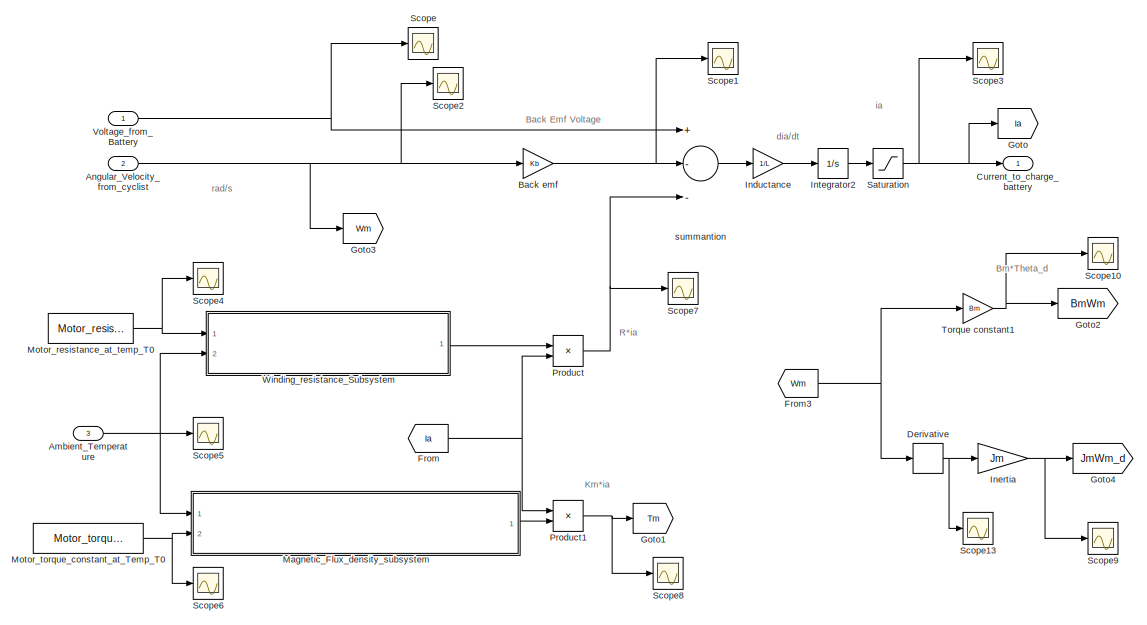
[diagram: Motor_Subsystem - part 1/2, center side, full height]
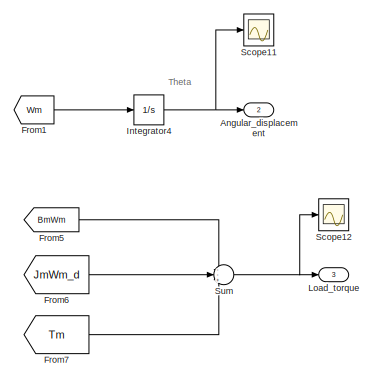
[diagram: Motor_Subsystem - part 2/2, middle right region]
BLOCK [SubSystem] Motor_Subsystem
  Ports = [3, 3]
  RequestExecContextInheritance = off
BLOCK [Inport] Motor_Subsystem/Ambient_Temperature
  IconDisplay = Port number
  Port = 3
BLOCK [Inport] Motor_Subsystem/Angular_Velocity_from_cyclist
  IconDisplay = Port number
  Port = 2
BLOCK [Outport] Motor_Subsystem/Angular_displacement
  IconDisplay = Port number
  Port = 2
  VectorParamsAs1DForOutWhenUnconnected = off
BLOCK [Gain] Motor_Subsystem/Back emf
  Gain = Kb
  OutDataTypeStr = Inherit: Inherit via internal rule
  ParamDataTypeStr = Inherit: Inherit via internal rule
  SaturateOnIntegerOverflow = off
BLOCK [Outport] Motor_Subsystem/Current_to_charge_battery
  IconDisplay = Port number
  VectorParamsAs1DForOutWhenUnconnected = off
BLOCK [Derivative] Motor_Subsystem/Derivative
BLOCK [From] Motor_Subsystem/From
  GotoTag = Ia
BLOCK [From] Motor_Subsystem/From1
  GotoTag = Wm
BLOCK [From] Motor_Subsystem/From3
  GotoTag = Wm
BLOCK [From] Motor_Subsystem/From5
  GotoTag = BmWm
BLOCK [From] Motor_Subsystem/From6
  GotoTag = JmWm_d
BLOCK [From] Motor_Subsystem/From7
  GotoTag = Tm
BLOCK [Goto] Motor_Subsystem/Goto
  GotoTag = Ia
BLOCK [Goto] Motor_Subsystem/Goto1
  GotoTag = Tm
BLOCK [Goto] Motor_Subsystem/Goto2
  GotoTag = BmWm
BLOCK [Goto] Motor_Subsystem/Goto3
  GotoTag = Wm
BLOCK [Goto] Motor_Subsystem/Goto4
  GotoTag = JmWm_d
BLOCK [Gain] Motor_Subsystem/Inductance
  Gain = 1/L
  OutDataTypeStr = Inherit: Inherit via internal rule
  ParamDataTypeStr = Inherit: Inherit via internal rule
  SaturateOnIntegerOverflow = off
BLOCK [Gain] Motor_Subsystem/Inertia
  Gain = Jm
  OutDataTypeStr = Inherit: Inherit via internal rule
  ParamDataTypeStr = Inherit: Inherit via internal rule
  SaturateOnIntegerOverflow = off
BLOCK [Integrator] Motor_Subsystem/Integrator2
  Ports = [1, 1]
BLOCK [Integrator] Motor_Subsystem/Integrator4
  Ports = [1, 1]
BLOCK [Outport] Motor_Subsystem/Load_torque
  IconDisplay = Port number
  Port = 3
BLOCK [SubSystem] Motor_Subsystem/Magnetic_Flux_density_subsystem
  Ports = [2, 1]
  RequestExecContextInheritance = off
BLOCK [Inport] Motor_Subsystem/Magnetic_Flux_density_subsystem/Ambient_temp_T
  IconDisplay = Port number
BLOCK [Constant] Motor_Subsystem/Magnetic_Flux_density_subsystem/Constant
BLOCK [Outport] Motor_Subsystem/Magnetic_Flux_density_subsystem/Motor_Torque_Constant_at_Temp_T
  IconDisplay = Port number
  VectorParamsAs1DForOutWhenUnconnected = off
BLOCK [Inport] Motor_Subsystem/Magnetic_Flux_density_subsystem/Motor_torque_constant_at_Temp_T0
  IconDisplay = Port number
  Port = 2
BLOCK [Product] Motor_Subsystem/Magnetic_Flux_density_subsystem/Product
  InputSameDT = off
  OutDataTypeStr = Inherit: Inherit via internal rule
  Ports = [2, 1]
  RndMeth = Floor
  SaturateOnIntegerOverflow = off
BLOCK [Product] Motor_Subsystem/Magnetic_Flux_density_subsystem/Product1
  InputSameDT = off
  OutDataTypeStr = Inherit: Inherit via internal rule
  Ports = [2, 1]
  RndMeth = Floor
  SaturateOnIntegerOverflow = off
BLOCK [Constant] Motor_Subsystem/Magnetic_Flux_density_subsystem/Reference_temp_T0
  Value = Ref_Temp
BLOCK [Sum] Motor_Subsystem/Magnetic_Flux_density_subsystem/Sum1
  IconShape = round
  InputSameDT = off
  Inputs = +-
  OutDataTypeStr = Inherit: Inherit via internal rule
  Ports = [2, 1]
  SaturateOnIntegerOverflow = off
BLOCK [Sum] Motor_Subsystem/Magnetic_Flux_density_subsystem/Sum2
  IconShape = round
  InputSameDT = off
  OutDataTypeStr = Inherit: Inherit via internal rule
  Ports = [2, 1]
  SaturateOnIntegerOverflow = off
BLOCK [Constant] Motor_Subsystem/Magnetic_Flux_density_subsystem/Temperature_Coefficient
  Value = Alpha_Magnet
BLOCK [Constant] Motor_Subsystem/Motor_resistance_at_temp_T0
  SampleTime = -1
  Value = Motor_resistance
BLOCK [Constant] Motor_Subsystem/Motor_torque_constant_at_Temp_T0
  SampleTime = -1
  Value = Motor_torque_constant
BLOCK [Product] Motor_Subsystem/Product
  InputSameDT = off
  OutDataTypeStr = Inherit: Inherit via internal rule
  Ports = [2, 1]
  RndMeth = Floor
  SaturateOnIntegerOverflow = off
BLOCK [Product] Motor_Subsystem/Product1
  InputSameDT = off
  OutDataTypeStr = Inherit: Inherit via internal rule
  Ports = [2, 1]
  RndMeth = Floor
  SaturateOnIntegerOverflow = off
BLOCK [Saturate] Motor_Subsystem/Saturation
  InputPortMap = u0
  LowerLimit = -inf
  Ports = [1, 1]
  UpperLimit = inf
BLOCK [Scope] Motor_Subsystem/Scope
  Floating = off
  NumInputPorts = 1
  Ports = [1]
  ScopeSpecificationString = Simulink.scopes.TimeScopeBlockCfg('CurrentConfiguration', extmgr.ConfigurationSet(extmgr.Configuration('Core','General UI',true),extmgr.Configuration('Core','Source UI',true),extmgr.Configuration('Sources','WiredSimulink',true,'DataLoggingVariableName','ScopeData1'),extmgr.Configuration('Visuals','Time Domain',true,'SerializedDisplays',{struct('MinYLimReal','33.04866','MaxYLimReal','42.21682','YLa...<+1531ch>
BLOCK [Scope] Motor_Subsystem/Scope1
  Floating = off
  NumInputPorts = 1
  Ports = [1]
  ScopeSpecificationString = Simulink.scopes.TimeScopeBlockCfg('CurrentConfiguration', extmgr.ConfigurationSet(extmgr.Configuration('Core','General UI',true),extmgr.Configuration('Core','Source UI',true),extmgr.Configuration('Sources','WiredSimulink',true,'DataLoggingVariableName','ScopeData2'),extmgr.Configuration('Visuals','Time Domain',true,'SerializedDisplays',{struct('MinYLimReal','-1.48597','MaxYLimReal','13.37375','YLa...<+1371ch>
BLOCK [Scope] Motor_Subsystem/Scope10
  Floating = off
  NumInputPorts = 1
  Ports = [1]
  ScopeSpecificationString = Simulink.scopes.TimeScopeBlockCfg('CurrentConfiguration', extmgr.ConfigurationSet(extmgr.Configuration('Core','General UI',true),extmgr.Configuration('Core','Source UI',true),extmgr.Configuration('Sources','WiredSimulink',true,'DataLoggingVariableName','ScopeData11'),extmgr.Configuration('Visuals','Time Domain',true,'SerializedDisplays',{struct('MinYLimReal','-0.02886','MaxYLimReal','0.25971','YLa...<+1403ch>
BLOCK [Scope] Motor_Subsystem/Scope11
  Floating = off
  NumInputPorts = 1
  Ports = [1]
  ScopeSpecificationString = Simulink.scopes.TimeScopeBlockCfg('CurrentConfiguration', extmgr.ConfigurationSet(extmgr.Configuration('Core','General UI',true),extmgr.Configuration('Core','Source UI',true),extmgr.Configuration('Sources','WiredSimulink',true,'DataLoggingVariableName','ScopeData12'),extmgr.Configuration('Visuals','Time Domain',true,'SerializedDisplays',{struct('MinYLimReal','-5519.69624','MaxYLimReal','49677.2662...<+1393ch>
BLOCK [Scope] Motor_Subsystem/Scope12
  Floating = off
  NumInputPorts = 1
  Ports = [1]
  ScopeSpecificationString = Simulink.scopes.TimeScopeBlockCfg('CurrentConfiguration', extmgr.ConfigurationSet(extmgr.Configuration('Core','General UI',true),extmgr.Configuration('Core','Source UI',true),extmgr.Configuration('Sources','WiredSimulink',true,'DataLoggingVariableName','ScopeData13'),extmgr.Configuration('Visuals','Time Domain',true,'SerializedDisplays',{struct('MinYLimReal','-3.6257','MaxYLimReal','32.55511','YLa...<+1456ch>
BLOCK [Scope] Motor_Subsystem/Scope13
  Floating = off
  NumInputPorts = 1
  Ports = [1]
  ScopeSpecificationString = Simulink.scopes.TimeScopeBlockCfg('CurrentConfiguration', extmgr.ConfigurationSet(extmgr.Configuration('Core','General UI',true),extmgr.Configuration('Core','Source UI',true),extmgr.Configuration('Sources','WiredSimulink',true,'DataLoggingVariableName','ScopeData14'),extmgr.Configuration('Visuals','Time Domain',true,'SerializedDisplays',{struct('MinYLimReal','-1.00000','MaxYLimReal','1.00000','YLa...<+1370ch>
BLOCK [Scope] Motor_Subsystem/Scope2
  Floating = off
  NumInputPorts = 1
  Ports = [1]
  ScopeSpecificationString = Simulink.scopes.TimeScopeBlockCfg('CurrentConfiguration', extmgr.ConfigurationSet(extmgr.Configuration('Core','General UI',true),extmgr.Configuration('Core','Source UI',true),extmgr.Configuration('Sources','WiredSimulink',true,'DataLoggingVariableName','ScopeData3'),extmgr.Configuration('Visuals','Time Domain',true,'SerializedDisplays',{struct('MinYLimReal','-3.00988','MaxYLimReal','27.0889','YLab...<+1527ch>
BLOCK [Scope] Motor_Subsystem/Scope3
  Floating = off
  NumInputPorts = 1
  Ports = [1]
  ScopeSpecificationString = Simulink.scopes.TimeScopeBlockCfg('CurrentConfiguration', extmgr.ConfigurationSet(extmgr.Configuration('Core','General UI',true),extmgr.Configuration('Core','Source UI',true),extmgr.Configuration('Sources','WiredSimulink',true,'DataLoggingVariableName','ScopeData4'),extmgr.Configuration('Visuals','Time Domain',true,'SerializedDisplays',{struct('MinYLimReal','-19.04957','MaxYLimReal','45.01011','YL...<+1433ch>
BLOCK [Scope] Motor_Subsystem/Scope4
  Floating = off
  NumInputPorts = 1
  Ports = [1]
  ScopeSpecificationString = Simulink.scopes.TimeScopeBlockCfg('CurrentConfiguration', extmgr.ConfigurationSet(extmgr.Configuration('Core','General UI',true),extmgr.Configuration('Core','Source UI',true),extmgr.Configuration('Sources','WiredSimulink',true,'DataLoggingVariableName','ScopeData5'),extmgr.Configuration('Visuals','Time Domain',true,'SerializedDisplays',{struct('MinYLimReal','0.78','MaxYLimReal','0.98','YLabelReal'...<+1395ch>
BLOCK [Scope] Motor_Subsystem/Scope5
  Floating = off
  NumInputPorts = 1
  Ports = [1]
  ScopeSpecificationString = Simulink.scopes.TimeScopeBlockCfg('CurrentConfiguration', extmgr.ConfigurationSet(extmgr.Configuration('Core','General UI',true),extmgr.Configuration('Core','Source UI',true),extmgr.Configuration('Sources','WiredSimulink',true,'DataLoggingVariableName','ScopeData6'),extmgr.Configuration('Visuals','Time Domain',true,'SerializedDisplays',{struct('MinYLimReal','24.92405','MaxYLimReal','25.00844','YLa...<+1384ch>
BLOCK [Scope] Motor_Subsystem/Scope6
  Floating = off
  NumInputPorts = 1
  Ports = [1]
  ScopeSpecificationString = Simulink.scopes.TimeScopeBlockCfg('CurrentConfiguration', extmgr.ConfigurationSet(extmgr.Configuration('Core','General UI',true),extmgr.Configuration('Core','Source UI',true),extmgr.Configuration('Sources','WiredSimulink',true,'DataLoggingVariableName','ScopeData7'),extmgr.Configuration('Visuals','Time Domain',true,'SerializedDisplays',{struct('MinYLimReal','0.0402','MaxYLimReal','0.0602','YLabelR...<+1500ch>
BLOCK [Scope] Motor_Subsystem/Scope7
  Floating = off
  NumInputPorts = 1
  Ports = [1]
  ScopeSpecificationString = Simulink.scopes.TimeScopeBlockCfg('CurrentConfiguration', extmgr.ConfigurationSet(extmgr.Configuration('Core','General UI',true),extmgr.Configuration('Core','Source UI',true),extmgr.Configuration('Sources','WiredSimulink',true,'DataLoggingVariableName','ScopeData8'),extmgr.Configuration('Visuals','Time Domain',true,'SerializedDisplays',{struct('MinYLimReal','-4.24646','MaxYLimReal','38.2181','YLab...<+1437ch>
BLOCK [Scope] Motor_Subsystem/Scope8
  Floating = off
  NumInputPorts = 1
  Ports = [1]
  ScopeSpecificationString = Simulink.scopes.TimeScopeBlockCfg('CurrentConfiguration', extmgr.ConfigurationSet(extmgr.Configuration('Core','General UI',true),extmgr.Configuration('Core','Source UI',true),extmgr.Configuration('Sources','WiredSimulink',true,'DataLoggingVariableName','ScopeData9'),extmgr.Configuration('Visuals','Time Domain',true,'SerializedDisplays',{struct('MinYLimReal','-3.6189','MaxYLimReal','32.57011','YLab...<+1421ch>
BLOCK [Scope] Motor_Subsystem/Scope9
  Floating = off
  NumInputPorts = 1
  Ports = [1]
  ScopeSpecificationString = Simulink.scopes.TimeScopeBlockCfg('CurrentConfiguration', extmgr.ConfigurationSet(extmgr.Configuration('Core','General UI',true),extmgr.Configuration('Core','Source UI',true),extmgr.Configuration('Sources','WiredSimulink',true,'DataLoggingVariableName','ScopeData10'),extmgr.Configuration('Visuals','Time Domain',true,'SerializedDisplays',{struct('MinYLimReal','-0.0314','MaxYLimReal','0.05605','YLab...<+1365ch>
BLOCK [Sum] Motor_Subsystem/Sum
  IconShape = round
  InputSameDT = off
  Inputs = --+
  OutDataTypeStr = Inherit: Inherit via internal rule
  Ports = [3, 1]
  SaturateOnIntegerOverflow = off
BLOCK [Gain] Motor_Subsystem/Torque constant1
  Gain = Bm
  OutDataTypeStr = Inherit: Inherit via internal rule
  ParamDataTypeStr = Inherit: Inherit via internal rule
  SaturateOnIntegerOverflow = off
BLOCK [Inport] Motor_Subsystem/Voltage_from_Battery
  IconDisplay = Port number
BLOCK [SubSystem] Motor_Subsystem/Winding_resistance_Subsystem
  Ports = [2, 1]
  RequestExecContextInheritance = off
BLOCK [Inport] Motor_Subsystem/Winding_resistance_Subsystem/Ambient_temp_T
  IconDisplay = Port number
  Port = 2
BLOCK [Constant] Motor_Subsystem/Winding_resistance_Subsystem/Constant
BLOCK [Product] Motor_Subsystem/Winding_resistance_Subsystem/Product
  InputSameDT = off
  OutDataTypeStr = Inherit: Inherit via internal rule
  Ports = [2, 1]
  RndMeth = Floor
  SaturateOnIntegerOverflow = off
BLOCK [Product] Motor_Subsystem/Winding_resistance_Subsystem/Product1
  InputSameDT = off
  OutDataTypeStr = Inherit: Inherit via internal rule
  Ports = [2, 1]
  RndMeth = Floor
  SaturateOnIntegerOverflow = off
BLOCK [Constant] Motor_Subsystem/Winding_resistance_Subsystem/Reference_temp_T0
  Value = Ref_Temp
BLOCK [Constant] Motor_Subsystem/Winding_resistance_Subsystem/Resistance_Temperature_Coefficient
  Value = alpha_Conductor
BLOCK [Outport] Motor_Subsystem/Winding_resistance_Subsystem/Resistance_at_Temp_T
  IconDisplay = Port number
  VectorParamsAs1DForOutWhenUnconnected = off
BLOCK [Inport] Motor_Subsystem/Winding_resistance_Subsystem/Resistance_at_Temp_T0
  IconDisplay = Port number
BLOCK [Sum] Motor_Subsystem/Winding_resistance_Subsystem/Sum1
  IconShape = round
  InputSameDT = off
  Inputs = +-
  OutDataTypeStr = Inherit: Inherit via internal rule
  Ports = [2, 1]
  SaturateOnIntegerOverflow = off
BLOCK [Sum] Motor_Subsystem/Winding_resistance_Subsystem/Sum2
  IconShape = round
  InputSameDT = off
  OutDataTypeStr = Inherit: Inherit via internal rule
  Ports = [2, 1]
  SaturateOnIntegerOverflow = off
BLOCK [Sum] Motor_Subsystem/summantion
  InputSameDT = off
  Inputs = +--
  OutDataTypeStr = Inherit: Inherit via internal rule
  Ports = [3, 1]
  SaturateOnIntegerOverflow = off
BLOCK [SubSystem] Signal Builder
  ClipboardFcn = sigbuilder_block('clipboard');
  CloseFcn = sigbuilder_block('close');
  ContinueFcn = sigbuilder_block('continue');
  CopyFcn = sigbuilder_block('copy');
  DeleteFcn = sigbuilder_block('delete');
  LoadFcn = sigbuilder_block('load');
  MaskHideContents = on
  ModelCloseFcn = sigbuilder_block('modelClose');
  NameChangeFcn = sigbuilder_block('namechange');
  OpenFcn = sigbuilder_block('open',[437.6 153 550.4 359.25 ]);
  PauseFcn = sigbuilder_block('pause');
  Ports = [0, 1]
  PreSaveFcn = sigbuilder_block('preSave');
  RequestExecContextInheritance = off
  StartFcn = sigbuilder_block('start');
  StopFcn = sigbuilder_block('stop');
  Tag = STV Subsys
BLOCK [Demux] Signal Builder/Demux
  Outputs = 1
  Ports = [1, 1]
  Tag = STV Demux
BLOCK [FromWorkspace] Signal Builder/FromWs
  SampleTime = 0
  Tag = STV FromWs
  VariableName = tuvar
  ZeroCross = on
BLOCK [Outport] Signal Builder/Signal 2
  IconDisplay = Port number
  Tag = STV Outport
BLOCK [SubSystem] Signal Builder2
  ClipboardFcn = sigbuilder_block('clipboard');
  CloseFcn = sigbuilder_block('close');
  ContinueFcn = sigbuilder_block('continue');
  CopyFcn = sigbuilder_block('copy');
  DeleteFcn = sigbuilder_block('delete');
  LoadFcn = sigbuilder_block('load');
  MaskHideContents = on
  ModelCloseFcn = sigbuilder_block('modelClose');
  NameChangeFcn = sigbuilder_block('namechange');
  OpenFcn = sigbuilder_block('open',[437.6 153 550.4 359.25 ]);
  PauseFcn = sigbuilder_block('pause');
  Ports = [0, 1]
  PreSaveFcn = sigbuilder_block('preSave');
  RequestExecContextInheritance = off
  StartFcn = sigbuilder_block('start');
  StopFcn = sigbuilder_block('stop');
  Tag = STV Subsys
BLOCK [Demux] Signal Builder2/Demux
  Outputs = 1
  Ports = [1, 1]
  Tag = STV Demux
BLOCK [FromWorkspace] Signal Builder2/FromWs
  SampleTime = 0
  Tag = STV FromWs
  VariableName = tuvar
  ZeroCross = on
BLOCK [Outport] Signal Builder2/Signal 1
  IconDisplay = Port number
  Tag = STV Outport
BLOCK [SubSystem] Signal Builder3
  ClipboardFcn = sigbuilder_block('clipboard');
  CloseFcn = sigbuilder_block('close');
  ContinueFcn = sigbuilder_block('continue');
  CopyFcn = sigbuilder_block('copy');
  DeleteFcn = sigbuilder_block('delete');
  LoadFcn = sigbuilder_block('load');
  MaskHideContents = on
  ModelCloseFcn = sigbuilder_block('modelClose');
  NameChangeFcn = sigbuilder_block('namechange');
  OpenFcn = sigbuilder_block('open',[437.6 153 550.4 359.25 ]);
  PauseFcn = sigbuilder_block('pause');
  Ports = [0, 1]
  PreSaveFcn = sigbuilder_block('preSave');
  RequestExecContextInheritance = off
  StartFcn = sigbuilder_block('start');
  StopFcn = sigbuilder_block('stop');
  Tag = STV Subsys
BLOCK [Demux] Signal Builder3/Demux
  Outputs = 1
  Ports = [1, 1]
  Tag = STV Demux
BLOCK [FromWorkspace] Signal Builder3/FromWs
  SampleTime = 0
  Tag = STV FromWs
  VariableName = tuvar
  ZeroCross = on
BLOCK [Outport] Signal Builder3/Signal 1
  IconDisplay = Port number
  Tag = STV Outport
BLOCK [Terminator] Terminator
BLOCK [Terminator] Terminator1
ANNOTATION Bike_Mechanics_subsystem: Acceleration
ANNOTATION Bike_Mechanics_subsystem: Distance_Travelled
ANNOTATION Bike_Mechanics_subsystem: Velocity
ANNOTATION Bike_Mechanics_subsystem/If Action Subsystem5/Subsystem1: Abs=1, if abs is active Abs=0, if abs is not active
ANNOTATION Motor_Subsystem: Back Emf Voltage
ANNOTATION Motor_Subsystem: Bm*Theta_d
ANNOTATION Motor_Subsystem: Km*ia
ANNOTATION Motor_Subsystem: R*ia
ANNOTATION Motor_Subsystem: Theta
ANNOTATION Motor_Subsystem: dia/dt
ANNOTATION Motor_Subsystem: ia
ANNOTATION Motor_Subsystem: rad/s
LINE Battery_Subsystem/Constant2:1 -> Battery_Subsystem/Relational Operator1:2
NET Battery_Subsystem/Diffusion_Voltage_loss_Subsystem/1RC Setup:1 -> Battery_Subsystem/Diffusion_Voltage_loss_Subsystem/Diffusion_Voltage_loss:1, Battery_Subsystem/Diffusion_Voltage_loss_Subsystem/Divide1:2, Battery_Subsystem/Diffusion_Voltage_loss_Subsystem/Scope3:1
NET Battery_Subsystem/Diffusion_Voltage_loss_Subsystem/Constant2:1 -> Battery_Subsystem/Diffusion_Voltage_loss_Subsystem/Divide:2, Battery_Subsystem/Diffusion_Voltage_loss_Subsystem/Product:1
LINE Battery_Subsystem/Diffusion_Voltage_loss_Subsystem/Constant3:1 -> Battery_Subsystem/Diffusion_Voltage_loss_Subsystem/Product:2
LINE Battery_Subsystem/Diffusion_Voltage_loss_Subsystem/Divide1:1 -> Battery_Subsystem/Diffusion_Voltage_loss_Subsystem/Sum1:2
LINE Battery_Subsystem/Diffusion_Voltage_loss_Subsystem/Divide:1 -> Battery_Subsystem/Diffusion_Voltage_loss_Subsystem/Sum1:1
LINE Battery_Subsystem/Diffusion_Voltage_loss_Subsystem/Integrator:1 -> Battery_Subsystem/Diffusion_Voltage_loss_Subsystem/1RC Setup:1
LINE Battery_Subsystem/Diffusion_Voltage_loss_Subsystem/Product:1 -> Battery_Subsystem/Diffusion_Voltage_loss_Subsystem/Divide1:1
LINE Battery_Subsystem/Diffusion_Voltage_loss_Subsystem/Sum1:1 -> Battery_Subsystem/Diffusion_Voltage_loss_Subsystem/Integrator:1
LINE Battery_Subsystem/Diffusion_Voltage_loss_Subsystem/current_from_DCmotor:1 -> Battery_Subsystem/Diffusion_Voltage_loss_Subsystem/Divide:1
LINE Battery_Subsystem/Diffusion_Voltage_loss_Subsystem:1 -> Battery_Subsystem/Sum:2
LINE Battery_Subsystem/Internal_Resistance_loss_Subsystem/Constant:1 -> Battery_Subsystem/Internal_Resistance_loss_Subsystem/Product1:2
NET Battery_Subsystem/Internal_Resistance_loss_Subsystem/Product1:1 -> Battery_Subsystem/Internal_Resistance_loss_Subsystem/Internal_Resistance_loss:1, Battery_Subsystem/Internal_Resistance_loss_Subsystem/Scope:1
LINE Battery_Subsystem/Internal_Resistance_loss_Subsystem/current_from_DCmotor:1 -> Battery_Subsystem/Internal_Resistance_loss_Subsystem/Product1:1
LINE Battery_Subsystem/Internal_Resistance_loss_Subsystem:1 -> Battery_Subsystem/Sum:3
LINE Battery_Subsystem/Product:1 -> Battery_Subsystem/Scope1:1
LINE Battery_Subsystem/Relational Operator1:1 -> Battery_Subsystem/Stop Simulation1:1
LINE Battery_Subsystem/State_of_Charge_Subsystem / :1 -> Battery_Subsystem/State_of_Charge_Subsystem /Divide:1
LINE Battery_Subsystem/State_of_Charge_Subsystem /1-D Lookup Table1:1 -> Battery_Subsystem/State_of_Charge_Subsystem /Manual Switch:1
LINE Battery_Subsystem/State_of_Charge_Subsystem /1-D Lookup Table:1 -> Battery_Subsystem/State_of_Charge_Subsystem /Manual Switch:2
LINE Battery_Subsystem/State_of_Charge_Subsystem /Ah to coulomb:1 -> Battery_Subsystem/State_of_Charge_Subsystem /Divide:2
LINE Battery_Subsystem/State_of_Charge_Subsystem /Constant:1 -> Battery_Subsystem/State_of_Charge_Subsystem /Ah to coulomb:1
LINE Battery_Subsystem/State_of_Charge_Subsystem /Divide:1 -> Battery_Subsystem/State_of_Charge_Subsystem /Integrator1:1
LINE Battery_Subsystem/State_of_Charge_Subsystem /Initial State of charge (100%):1 -> Battery_Subsystem/State_of_Charge_Subsystem /Sum2:1
NET Battery_Subsystem/State_of_Charge_Subsystem /Integrator1:1 -> Battery_Subsystem/State_of_Charge_Subsystem /SOC:1, Battery_Subsystem/State_of_Charge_Subsystem /Scope1:1, Battery_Subsystem/State_of_Charge_Subsystem /Sum2:2
LINE Battery_Subsystem/State_of_Charge_Subsystem /Manual Switch:1 -> Battery_Subsystem/State_of_Charge_Subsystem /Saturation:1
NET Battery_Subsystem/State_of_Charge_Subsystem /Saturation:1 -> Battery_Subsystem/State_of_Charge_Subsystem /Display:1, Battery_Subsystem/State_of_Charge_Subsystem /Open_circuit_voltage:1, Battery_Subsystem/State_of_Charge_Subsystem /Scope:1
NET Battery_Subsystem/State_of_Charge_Subsystem /Sum2:1 -> Battery_Subsystem/State_of_Charge_Subsystem /1-D Lookup Table1:1, Battery_Subsystem/State_of_Charge_Subsystem /1-D Lookup Table:1
LINE Battery_Subsystem/State_of_Charge_Subsystem /current_from_DCmotor:1 -> Battery_Subsystem/State_of_Charge_Subsystem / :1
NET Battery_Subsystem/State_of_Charge_Subsystem :1 -> Battery_Subsystem/Relational Operator1:1, Battery_Subsystem/Sum:1
LINE Battery_Subsystem/State_of_Charge_Subsystem :2 -> Battery_Subsystem/Present SOC:1
NET Battery_Subsystem/Sum:1 -> Battery_Subsystem/Display9:1, Battery_Subsystem/Product:1, Battery_Subsystem/Scope3:1, Battery_Subsystem/Terminal Voltage:1
NET Battery_Subsystem/current_from_DCmotor:1 -> Battery_Subsystem/Diffusion_Voltage_loss_Subsystem:1, Battery_Subsystem/Internal_Resistance_loss_Subsystem:1, Battery_Subsystem/Product:2, Battery_Subsystem/State_of_Charge_Subsystem :1
LINE Battery_Subsystem:1 -> Controller:5
LINE Bike_Mechanics_subsystem/Aerodynamic_Drag_subsystem/.:1 -> Bike_Mechanics_subsystem/Aerodynamic_Drag_subsystem/Product:1
LINE Bike_Mechanics_subsystem/Aerodynamic_Drag_subsystem/Air_density:1 -> Bike_Mechanics_subsystem/Aerodynamic_Drag_subsystem/Product:2
LINE Bike_Mechanics_subsystem/Aerodynamic_Drag_subsystem/Cross sectional area//Reference area:1 -> Bike_Mechanics_subsystem/Aerodynamic_Drag_subsystem/Product:4
LINE Bike_Mechanics_subsystem/Aerodynamic_Drag_subsystem/Drag Coeffient:1 -> Bike_Mechanics_subsystem/Aerodynamic_Drag_subsystem/Product:3
LINE Bike_Mechanics_subsystem/Aerodynamic_Drag_subsystem/Math Function1:1 -> Bike_Mechanics_subsystem/Aerodynamic_Drag_subsystem/Product:5
NET Bike_Mechanics_subsystem/Aerodynamic_Drag_subsystem/Product:1 -> Bike_Mechanics_subsystem/Aerodynamic_Drag_subsystem/Drag_Force :1, Bike_Mechanics_subsystem/Aerodynamic_Drag_subsystem/Drag_force_scope:1
LINE Bike_Mechanics_subsystem/Aerodynamic_Drag_subsystem/Sum:1 -> Bike_Mechanics_subsystem/Aerodynamic_Drag_subsystem/Math Function1:1
LINE Bike_Mechanics_subsystem/Aerodynamic_Drag_subsystem/Vehicle Speed (V):1 -> Bike_Mechanics_subsystem/Aerodynamic_Drag_subsystem/Sum:1
LINE Bike_Mechanics_subsystem/Aerodynamic_Drag_subsystem/Wind Speed (V_w) :1 -> Bike_Mechanics_subsystem/Aerodynamic_Drag_subsystem/Sum:2
LINE Bike_Mechanics_subsystem/Aerodynamic_Drag_subsystem:1 -> Bike_Mechanics_subsystem/Sum:2
NET Bike_Mechanics_subsystem/Brake pressure:1 -> Bike_Mechanics_subsystem/If Action Subsystem5:2, Bike_Mechanics_subsystem/If2:1
LINE Bike_Mechanics_subsystem/Constant:1 -> Bike_Mechanics_subsystem/Divide:2
NET Bike_Mechanics_subsystem/Divide:1 -> Bike_Mechanics_subsystem/Acceleration:1, Bike_Mechanics_subsystem/Goto1:1, Bike_Mechanics_subsystem/Integrator:1
LINE Bike_Mechanics_subsystem/From1:1 -> Bike_Mechanics_subsystem/Aerodynamic_Drag_subsystem:1
NET Bike_Mechanics_subsystem/From:1 -> Bike_Mechanics_subsystem/Inertia_Subsystem1:1, Bike_Mechanics_subsystem/Inertia_Subsystem:1
LINE Bike_Mechanics_subsystem/Gear_ratio:1 -> Bike_Mechanics_subsystem/Pedallic_torque_subsystem:2
LINE Bike_Mechanics_subsystem/Gradient_Resistance_subsystem/Acceleration due to Gravity (g) m//s^2:1 -> Bike_Mechanics_subsystem/Gradient_Resistance_subsystem/Product:2
LINE Bike_Mechanics_subsystem/Gradient_Resistance_subsystem/Angle_of_slope:1 -> Bike_Mechanics_subsystem/Gradient_Resistance_subsystem/Cos:1
NET Bike_Mechanics_subsystem/Gradient_Resistance_subsystem/Cos:1 -> Bike_Mechanics_subsystem/Gradient_Resistance_subsystem/Display:1, Bike_Mechanics_subsystem/Gradient_Resistance_subsystem/Product:3, Bike_Mechanics_subsystem/Gradient_Resistance_subsystem/Scope:1
LINE Bike_Mechanics_subsystem/Gradient_Resistance_subsystem/Cyclist_weight (M) in Kg:1 -> Bike_Mechanics_subsystem/Gradient_Resistance_subsystem/Sum2:1
NET Bike_Mechanics_subsystem/Gradient_Resistance_subsystem/Product:1 -> Bike_Mechanics_subsystem/Gradient_Resistance_subsystem/Gradient_resistance:1, Bike_Mechanics_subsystem/Gradient_Resistance_subsystem/Gradient_resistance_scope:1
LINE Bike_Mechanics_subsystem/Gradient_Resistance_subsystem/Sum2:1 -> Bike_Mechanics_subsystem/Gradient_Resistance_subsystem/Product:1
LINE Bike_Mechanics_subsystem/Gradient_Resistance_subsystem/Vehicle_mass (M) in Kg:1 -> Bike_Mechanics_subsystem/Gradient_Resistance_subsystem/Sum2:2
LINE Bike_Mechanics_subsystem/Gradient_Resistance_subsystem:1 -> Bike_Mechanics_subsystem/Sum:4
NET Bike_Mechanics_subsystem/If Action Subsystem5/Brake pressure:1 -> Bike_Mechanics_subsystem/If Action Subsystem5/Scope:1, Bike_Mechanics_subsystem/If Action Subsystem5/Subsystem1:2
NET Bike_Mechanics_subsystem/If Action Subsystem5/Subsystem1/1-D Lookup Table:1 -> Bike_Mechanics_subsystem/If Action Subsystem5/Subsystem1/Gain1:1, Bike_Mechanics_subsystem/If Action Subsystem5/Subsystem1/Scope3:1
LINE Bike_Mechanics_subsystem/If Action Subsystem5/Subsystem1/Brake_pressure:1 -> Bike_Mechanics_subsystem/If Action Subsystem5/Subsystem1/Subsystem:1
LINE Bike_Mechanics_subsystem/If Action Subsystem5/Subsystem1/Bus Creator:1 -> Bike_Mechanics_subsystem/If Action Subsystem5/Subsystem1/Fcn:1
LINE Bike_Mechanics_subsystem/If Action Subsystem5/Subsystem1/Constant1:1 -> Bike_Mechanics_subsystem/If Action Subsystem5/Subsystem1/Relational Operator:2
LINE Bike_Mechanics_subsystem/If Action Subsystem5/Subsystem1/Constant2:1 -> Bike_Mechanics_subsystem/If Action Subsystem5/Subsystem1/Sum1:2
LINE Bike_Mechanics_subsystem/If Action Subsystem5/Subsystem1/Constant:1 -> Bike_Mechanics_subsystem/If Action Subsystem5/Subsystem1/Sum:1
NET Bike_Mechanics_subsystem/If Action Subsystem5/Subsystem1/Fcn:1 -> Bike_Mechanics_subsystem/If Action Subsystem5/Subsystem1/1-D Lookup Table:1, Bike_Mechanics_subsystem/If Action Subsystem5/Subsystem1/Gain:1, Bike_Mechanics_subsystem/If Action Subsystem5/Subsystem1/Scope4:1
NET Bike_Mechanics_subsystem/If Action Subsystem5/Subsystem1/Gain1:1 -> Bike_Mechanics_subsystem/If Action Subsystem5/Subsystem1/Gain2:1, Bike_Mechanics_subsystem/If Action Subsystem5/Subsystem1/Gain3:1
LINE Bike_Mechanics_subsystem/If Action Subsystem5/Subsystem1/Gain2:1 -> Bike_Mechanics_subsystem/If Action Subsystem5/Subsystem1/Subsystem:3
NET Bike_Mechanics_subsystem/If Action Subsystem5/Subsystem1/Gain3:1 -> Bike_Mechanics_subsystem/If Action Subsystem5/Subsystem1/Integrator:1, Bike_Mechanics_subsystem/If Action Subsystem5/Subsystem1/Scope6:1
NET Bike_Mechanics_subsystem/If Action Subsystem5/Subsystem1/Gain4:1 -> Bike_Mechanics_subsystem/If Action Subsystem5/Subsystem1/Bus Creator:2, Bike_Mechanics_subsystem/If Action Subsystem5/Subsystem1/Scope1:1, Bike_Mechanics_subsystem/If Action Subsystem5/Subsystem1/Scope8:1, Bike_Mechanics_subsystem/If Action Subsystem5/Subsystem1/velocity_of_bike:1
NET Bike_Mechanics_subsystem/If Action Subsystem5/Subsystem1/Gain5:1 -> Bike_Mechanics_subsystem/If Action Subsystem5/Subsystem1/Bus Creator:3, Bike_Mechanics_subsystem/If Action Subsystem5/Subsystem1/Scope2:1, Bike_Mechanics_subsystem/If Action Subsystem5/Subsystem1/stopping_distance:1
NET Bike_Mechanics_subsystem/If Action Subsystem5/Subsystem1/Gain6:1 -> Bike_Mechanics_subsystem/If Action Subsystem5/Subsystem1/Integrator:2, Bike_Mechanics_subsystem/If Action Subsystem5/Subsystem1/Scope9:1, Bike_Mechanics_subsystem/If Action Subsystem5/Subsystem1/Subsystem:4
LINE Bike_Mechanics_subsystem/If Action Subsystem5/Subsystem1/Gain:1 -> Bike_Mechanics_subsystem/If Action Subsystem5/Subsystem1/Sum:2
LINE Bike_Mechanics_subsystem/If Action Subsystem5/Subsystem1/Integrator1:1 -> Bike_Mechanics_subsystem/If Action Subsystem5/Subsystem1/Gain5:1
NET Bike_Mechanics_subsystem/If Action Subsystem5/Subsystem1/Integrator:1 -> Bike_Mechanics_subsystem/If Action Subsystem5/Subsystem1/Gain4:1, Bike_Mechanics_subsystem/If Action Subsystem5/Subsystem1/Integrator1:1, Bike_Mechanics_subsystem/If Action Subsystem5/Subsystem1/Relational Operator:1, Bike_Mechanics_subsystem/If Action Subsystem5/Subsystem1/Scope5:1
LINE Bike_Mechanics_subsystem/If Action Subsystem5/Subsystem1/Relational Operator:1 -> Bike_Mechanics_subsystem/If Action Subsystem5/Subsystem1/Stop Simulation:1
LINE Bike_Mechanics_subsystem/If Action Subsystem5/Subsystem1/Subsystem/Brake Pressure:1 -> Bike_Mechanics_subsystem/If Action Subsystem5/Subsystem1/Subsystem/Saturation Dynamic:1
LINE Bike_Mechanics_subsystem/If Action Subsystem5/Subsystem1/Subsystem/Brake_coefficient_of_friction:1 -> Bike_Mechanics_subsystem/If Action Subsystem5/Subsystem1/Subsystem/Product1:4
LINE Bike_Mechanics_subsystem/If Action Subsystem5/Subsystem1/Subsystem/Constant2:1 -> Bike_Mechanics_subsystem/If Action Subsystem5/Subsystem1/Subsystem/Saturation Dynamic:3
LINE Bike_Mechanics_subsystem/If Action Subsystem5/Subsystem1/Subsystem/Constant:1 -> Bike_Mechanics_subsystem/If Action Subsystem5/Subsystem1/Subsystem/Product:1
LINE Bike_Mechanics_subsystem/If Action Subsystem5/Subsystem1/Subsystem/Disc_Brake_Pad_Area:1 -> Bike_Mechanics_subsystem/If Action Subsystem5/Subsystem1/Subsystem/Square:1
LINE Bike_Mechanics_subsystem/If Action Subsystem5/Subsystem1/Subsystem/Divide:1 -> Bike_Mechanics_subsystem/If Action Subsystem5/Subsystem1/Subsystem/Integrator:2
NET Bike_Mechanics_subsystem/If Action Subsystem5/Subsystem1/Subsystem/Gain:1 -> Bike_Mechanics_subsystem/If Action Subsystem5/Subsystem1/Subsystem/Integrator:1, Bike_Mechanics_subsystem/If Action Subsystem5/Subsystem1/Subsystem/Scope1:1
LINE Bike_Mechanics_subsystem/If Action Subsystem5/Subsystem1/Subsystem/Integrator1:1 -> Bike_Mechanics_subsystem/If Action Subsystem5/Subsystem1/Subsystem/Product1:1
NET Bike_Mechanics_subsystem/If Action Subsystem5/Subsystem1/Subsystem/Integrator:1 -> Bike_Mechanics_subsystem/If Action Subsystem5/Subsystem1/Subsystem/Scope:1, Bike_Mechanics_subsystem/If Action Subsystem5/Subsystem1/Subsystem/Wheel speed :1
LINE Bike_Mechanics_subsystem/If Action Subsystem5/Subsystem1/Subsystem/Manual Switch:1 -> Bike_Mechanics_subsystem/If Action Subsystem5/Subsystem1/Subsystem/Product:2
NET Bike_Mechanics_subsystem/If Action Subsystem5/Subsystem1/Subsystem/PID Controller:1 -> Bike_Mechanics_subsystem/If Action Subsystem5/Subsystem1/Subsystem/Manual Switch:1, Bike_Mechanics_subsystem/If Action Subsystem5/Subsystem1/Subsystem/Transfer Fcn:1
NET Bike_Mechanics_subsystem/If Action Subsystem5/Subsystem1/Subsystem/Product1:1 -> Bike_Mechanics_subsystem/If Action Subsystem5/Subsystem1/Subsystem/Scope2:1, Bike_Mechanics_subsystem/If Action Subsystem5/Subsystem1/Subsystem/Sum:1
LINE Bike_Mechanics_subsystem/If Action Subsystem5/Subsystem1/Subsystem/Product:1 -> Bike_Mechanics_subsystem/If Action Subsystem5/Subsystem1/Subsystem/Saturation Dynamic:2
NET Bike_Mechanics_subsystem/If Action Subsystem5/Subsystem1/Subsystem/Saturation Dynamic:1 -> Bike_Mechanics_subsystem/If Action Subsystem5/Subsystem1/Subsystem/Integrator1:1, Bike_Mechanics_subsystem/If Action Subsystem5/Subsystem1/Subsystem/Scope6:1
LINE Bike_Mechanics_subsystem/If Action Subsystem5/Subsystem1/Subsystem/Square:1 -> Bike_Mechanics_subsystem/If Action Subsystem5/Subsystem1/Subsystem/Product1:3
LINE Bike_Mechanics_subsystem/If Action Subsystem5/Subsystem1/Subsystem/Sum:1 -> Bike_Mechanics_subsystem/If Action Subsystem5/Subsystem1/Subsystem/Gain:1
NET Bike_Mechanics_subsystem/If Action Subsystem5/Subsystem1/Subsystem/Tire Torque:1 -> Bike_Mechanics_subsystem/If Action Subsystem5/Subsystem1/Subsystem/Scope3:1, Bike_Mechanics_subsystem/If Action Subsystem5/Subsystem1/Subsystem/Sum:2
NET Bike_Mechanics_subsystem/If Action Subsystem5/Subsystem1/Subsystem/Transfer Fcn:1 -> Bike_Mechanics_subsystem/If Action Subsystem5/Subsystem1/Subsystem/Manual Switch:2, Bike_Mechanics_subsystem/If Action Subsystem5/Subsystem1/Subsystem/Scope4:1
NET Bike_Mechanics_subsystem/If Action Subsystem5/Subsystem1/Subsystem/Velocity:1 -> Bike_Mechanics_subsystem/If Action Subsystem5/Subsystem1/Subsystem/Divide:1, Bike_Mechanics_subsystem/If Action Subsystem5/Subsystem1/Subsystem/Scope5:1
NET Bike_Mechanics_subsystem/If Action Subsystem5/Subsystem1/Subsystem/Wheel_radius (Rw) :1 -> Bike_Mechanics_subsystem/If Action Subsystem5/Subsystem1/Subsystem/Divide:2, Bike_Mechanics_subsystem/If Action Subsystem5/Subsystem1/Subsystem/Product1:5
LINE Bike_Mechanics_subsystem/If Action Subsystem5/Subsystem1/Subsystem/const :1 -> Bike_Mechanics_subsystem/If Action Subsystem5/Subsystem1/Subsystem/Product1:2
LINE Bike_Mechanics_subsystem/If Action Subsystem5/Subsystem1/Subsystem/error :1 -> Bike_Mechanics_subsystem/If Action Subsystem5/Subsystem1/Subsystem/PID Controller:1
NET Bike_Mechanics_subsystem/If Action Subsystem5/Subsystem1/Subsystem:1 -> Bike_Mechanics_subsystem/If Action Subsystem5/Subsystem1/Bus Creator:1, Bike_Mechanics_subsystem/If Action Subsystem5/Subsystem1/Scope:1, Bike_Mechanics_subsystem/If Action Subsystem5/Subsystem1/Wheel_Velocity:1
LINE Bike_Mechanics_subsystem/If Action Subsystem5/Subsystem1/Sum1:1 -> Bike_Mechanics_subsystem/If Action Subsystem5/Subsystem1/Gain6:1
NET Bike_Mechanics_subsystem/If Action Subsystem5/Subsystem1/Sum:1 -> Bike_Mechanics_subsystem/If Action Subsystem5/Subsystem1/Scope7:1, Bike_Mechanics_subsystem/If Action Subsystem5/Subsystem1/Subsystem:2
LINE Bike_Mechanics_subsystem/If Action Subsystem5/Subsystem1/velocity:1 -> Bike_Mechanics_subsystem/If Action Subsystem5/Subsystem1/Sum1:1
LINE Bike_Mechanics_subsystem/If Action Subsystem5/Subsystem1:1 -> Bike_Mechanics_subsystem/If Action Subsystem5/Scope1:1
NET Bike_Mechanics_subsystem/If Action Subsystem5/Subsystem1:2 -> Bike_Mechanics_subsystem/If Action Subsystem5/Scope2:1, Bike_Mechanics_subsystem/If Action Subsystem5/Velocity_after_braking_action:1
LINE Bike_Mechanics_subsystem/If Action Subsystem5/Subsystem1:3 -> Bike_Mechanics_subsystem/If Action Subsystem5/Scope3:1
LINE Bike_Mechanics_subsystem/If Action Subsystem5/Velocity:1 -> Bike_Mechanics_subsystem/If Action Subsystem5/Subsystem1:1
LINE Bike_Mechanics_subsystem/If Action Subsystem5:1 -> Bike_Mechanics_subsystem/Merge2:1
LINE Bike_Mechanics_subsystem/If Action Subsystem6/Gain:1 -> Bike_Mechanics_subsystem/If Action Subsystem6/Out1:1
LINE Bike_Mechanics_subsystem/If Action Subsystem6/In1:1 -> Bike_Mechanics_subsystem/If Action Subsystem6/Gain:1
LINE Bike_Mechanics_subsystem/If Action Subsystem6:1 -> Bike_Mechanics_subsystem/Merge2:2
LINE Bike_Mechanics_subsystem/If2:1 -> Bike_Mechanics_subsystem/If Action Subsystem5:ifaction
LINE Bike_Mechanics_subsystem/If2:2 -> Bike_Mechanics_subsystem/If Action Subsystem6:ifaction
NET Bike_Mechanics_subsystem/Inertia_Subsystem/Acceleration:1 -> Bike_Mechanics_subsystem/Inertia_Subsystem/Divide2:1, Bike_Mechanics_subsystem/Inertia_Subsystem/Product2:2
LINE Bike_Mechanics_subsystem/Inertia_Subsystem/Cyclist_weight (M) in Kg:1 -> Bike_Mechanics_subsystem/Inertia_Subsystem/Sum1:1
LINE Bike_Mechanics_subsystem/Inertia_Subsystem/Divide1:1 -> Bike_Mechanics_subsystem/Inertia_Subsystem/Product4:1
LINE Bike_Mechanics_subsystem/Inertia_Subsystem/Divide2:1 -> Bike_Mechanics_subsystem/Inertia_Subsystem/Product4:2
LINE Bike_Mechanics_subsystem/Inertia_Subsystem/Math Function:1 -> Bike_Mechanics_subsystem/Inertia_Subsystem/Product3:2
LINE Bike_Mechanics_subsystem/Inertia_Subsystem/Product2:1 -> Bike_Mechanics_subsystem/Inertia_Subsystem/Sum:1
LINE Bike_Mechanics_subsystem/Inertia_Subsystem/Product3:1 -> Bike_Mechanics_subsystem/Inertia_Subsystem/Divide1:1
LINE Bike_Mechanics_subsystem/Inertia_Subsystem/Product4:1 -> Bike_Mechanics_subsystem/Inertia_Subsystem/Sum:2
LINE Bike_Mechanics_subsystem/Inertia_Subsystem/Sum1:1 -> Bike_Mechanics_subsystem/Inertia_Subsystem/Product2:1
NET Bike_Mechanics_subsystem/Inertia_Subsystem/Sum:1 -> Bike_Mechanics_subsystem/Inertia_Subsystem/Inertia_Force_resistance:1, Bike_Mechanics_subsystem/Inertia_Subsystem/Scope2:1
LINE Bike_Mechanics_subsystem/Inertia_Subsystem/Vehicle_mass (M) in Kg:1 -> Bike_Mechanics_subsystem/Inertia_Subsystem/Sum1:2
NET Bike_Mechanics_subsystem/Inertia_Subsystem/Wheel_Radius (Rw) in m:1 -> Bike_Mechanics_subsystem/Inertia_Subsystem/Divide1:2, Bike_Mechanics_subsystem/Inertia_Subsystem/Divide2:2, Bike_Mechanics_subsystem/Inertia_Subsystem/Math Function:1
LINE Bike_Mechanics_subsystem/Inertia_Subsystem/Wheel_mass (Wm) in Kg:1 -> Bike_Mechanics_subsystem/Inertia_Subsystem/Product3:1
LINE Bike_Mechanics_subsystem/Inertia_Subsystem1/Acceleration:1 -> Bike_Mechanics_subsystem/Inertia_Subsystem1/Product2:2
NET Bike_Mechanics_subsystem/Inertia_Subsystem1/Gain:1 -> Bike_Mechanics_subsystem/Inertia_Subsystem1/Scope2:1, Bike_Mechanics_subsystem/Inertia_Subsystem1/Trailer_force:1
LINE Bike_Mechanics_subsystem/Inertia_Subsystem1/Product2:1 -> Bike_Mechanics_subsystem/Inertia_Subsystem1/Gain:1
LINE Bike_Mechanics_subsystem/Inertia_Subsystem1/Vehicle_mass (M) in Kg:1 -> Bike_Mechanics_subsystem/Inertia_Subsystem1/Product2:1
LINE Bike_Mechanics_subsystem/Inertia_Subsystem1:1 -> Bike_Mechanics_subsystem/Sum:6
LINE Bike_Mechanics_subsystem/Inertia_Subsystem:1 -> Bike_Mechanics_subsystem/Sum:5
LINE Bike_Mechanics_subsystem/Inertia_of_wheel:1 -> Bike_Mechanics_subsystem/Inertia_Subsystem:2
NET Bike_Mechanics_subsystem/Integrator1:1 -> Bike_Mechanics_subsystem/Distance_Travelled:1, Bike_Mechanics_subsystem/Scope2:1
NET Bike_Mechanics_subsystem/Integrator:1 -> Bike_Mechanics_subsystem/Goto:1, Bike_Mechanics_subsystem/If Action Subsystem5:1, Bike_Mechanics_subsystem/If Action Subsystem6:1, Bike_Mechanics_subsystem/Integrator1:1, Bike_Mechanics_subsystem/Scope1:1
NET Bike_Mechanics_subsystem/Merge2:1 -> Bike_Mechanics_subsystem/Scope:1, Bike_Mechanics_subsystem/Vehicle_speed:1
NET Bike_Mechanics_subsystem/Pedallic_torque_subsystem/Divide1:1 -> Bike_Mechanics_subsystem/Pedallic_torque_subsystem/Divide:1, Bike_Mechanics_subsystem/Pedallic_torque_subsystem/Scope:1
NET Bike_Mechanics_subsystem/Pedallic_torque_subsystem/Divide:1 -> Bike_Mechanics_subsystem/Pedallic_torque_subsystem/Drive_Force:1, Bike_Mechanics_subsystem/Pedallic_torque_subsystem/Scope2:1
LINE Bike_Mechanics_subsystem/Pedallic_torque_subsystem/Gear_ratio:1 -> Bike_Mechanics_subsystem/Pedallic_torque_subsystem/Divide1:2
NET Bike_Mechanics_subsystem/Pedallic_torque_subsystem/Torque:1 -> Bike_Mechanics_subsystem/Pedallic_torque_subsystem/Divide1:1, Bike_Mechanics_subsystem/Pedallic_torque_subsystem/Scope1:1
LINE Bike_Mechanics_subsystem/Pedallic_torque_subsystem/Wheel_radius (Rw) :1 -> Bike_Mechanics_subsystem/Pedallic_torque_subsystem/Divide:2
LINE Bike_Mechanics_subsystem/Pedallic_torque_subsystem:1 -> Bike_Mechanics_subsystem/Sum:1
LINE Bike_Mechanics_subsystem/Rolling_Resistance_subsystem/Acceleration_due_to_Gravity (g) m//s^2:1 -> Bike_Mechanics_subsystem/Rolling_Resistance_subsystem/Product:3
LINE Bike_Mechanics_subsystem/Rolling_Resistance_subsystem/Angle_of_slope:1 -> Bike_Mechanics_subsystem/Rolling_Resistance_subsystem/Cos:1
LINE Bike_Mechanics_subsystem/Rolling_Resistance_subsystem/Cos:1 -> Bike_Mechanics_subsystem/Rolling_Resistance_subsystem/Product:4
LINE Bike_Mechanics_subsystem/Rolling_Resistance_subsystem/Cyclist_weight (M) in Kg:1 -> Bike_Mechanics_subsystem/Rolling_Resistance_subsystem/Sum2:1
LINE Bike_Mechanics_subsystem/Rolling_Resistance_subsystem/Dynamic_Friction_Coefficient:1 -> Bike_Mechanics_subsystem/Rolling_Resistance_subsystem/Sum:2
NET Bike_Mechanics_subsystem/Rolling_Resistance_subsystem/Product:1 -> Bike_Mechanics_subsystem/Rolling_Resistance_subsystem/Rolling_resistance:1, Bike_Mechanics_subsystem/Rolling_Resistance_subsystem/Rolling_resistance_scope:1
LINE Bike_Mechanics_subsystem/Rolling_Resistance_subsystem/Static_Friction_Coefficient:1 -> Bike_Mechanics_subsystem/Rolling_Resistance_subsystem/Sum:1
LINE Bike_Mechanics_subsystem/Rolling_Resistance_subsystem/Sum2:1 -> Bike_Mechanics_subsystem/Rolling_Resistance_subsystem/Product:2
LINE Bike_Mechanics_subsystem/Rolling_Resistance_subsystem/Sum:1 -> Bike_Mechanics_subsystem/Rolling_Resistance_subsystem/Product:1
LINE Bike_Mechanics_subsystem/Rolling_Resistance_subsystem/Vehicle_mass (M) in Kg:1 -> Bike_Mechanics_subsystem/Rolling_Resistance_subsystem/Sum2:2
LINE Bike_Mechanics_subsystem/Rolling_Resistance_subsystem:1 -> Bike_Mechanics_subsystem/Sum:3
LINE Bike_Mechanics_subsystem/Slope %:1 -> Bike_Mechanics_subsystem/Subsystem2:1
LINE Bike_Mechanics_subsystem/Subsystem2/Constant1:1 -> Bike_Mechanics_subsystem/Subsystem2/Divide:2
LINE Bike_Mechanics_subsystem/Subsystem2/Constant:1 -> Bike_Mechanics_subsystem/Subsystem2/Divide:1
LINE Bike_Mechanics_subsystem/Subsystem2/Divide:1 -> Bike_Mechanics_subsystem/Subsystem2/Product:2
LINE Bike_Mechanics_subsystem/Subsystem2/Gain:1 -> Bike_Mechanics_subsystem/Subsystem2/Trigonometric Function:1
LINE Bike_Mechanics_subsystem/Subsystem2/Product:1 -> Bike_Mechanics_subsystem/Subsystem2/alpha:1
LINE Bike_Mechanics_subsystem/Subsystem2/Slope %:1 -> Bike_Mechanics_subsystem/Subsystem2/Gain:1
LINE Bike_Mechanics_subsystem/Subsystem2/Trigonometric Function:1 -> Bike_Mechanics_subsystem/Subsystem2/Product:1
NET Bike_Mechanics_subsystem/Subsystem2:1 -> Bike_Mechanics_subsystem/Gradient_Resistance_subsystem:1, Bike_Mechanics_subsystem/Rolling_Resistance_subsystem:1
LINE Bike_Mechanics_subsystem/Sum:1 -> Bike_Mechanics_subsystem/Divide:1
LINE Bike_Mechanics_subsystem/Torque:1 -> Bike_Mechanics_subsystem/Pedallic_torque_subsystem:1
LINE Bike_Mechanics_subsystem/Wheel_radius (Rw) :1 -> Bike_Mechanics_subsystem/Inertia_Subsystem:3
LINE Bike_Mechanics_subsystem/Wind Speed:1 -> Bike_Mechanics_subsystem/Aerodynamic_Drag_subsystem:2
LINE Bike_Mechanics_subsystem:2 -> Terminator1:1
NET Bike_Mechanics_subsystem:3 -> Controller:2, Gain:1
LINE Constant2:1 -> Motor_Subsystem:3
LINE Constant6:1 -> Manual Switch:1
LINE Constant7:1 -> Driver_subsystem:1
LINE Controller/ Power assist:1 -> Controller/3-D Lookup Table2:3
NET Controller/3-D Lookup Table2:1 -> Controller/If Action Subsystem11:1, Controller/If Action Subsystem12:1, Controller/Scope3:1
NET Controller/Brake:1 -> Controller/If1:1, Controller/If2:1, Controller/If6:1
LINE Controller/If Action Subsystem1/Gain:1 -> Controller/If Action Subsystem1/Out1:1
LINE Controller/If Action Subsystem1/In1:1 -> Controller/If Action Subsystem1/Gain:1
LINE Controller/If Action Subsystem11/Gain:1 -> Controller/If Action Subsystem11/Out1:1
LINE Controller/If Action Subsystem11/In1:1 -> Controller/If Action Subsystem11/Gain:1
LINE Controller/If Action Subsystem11:1 -> Controller/Merge5:1
LINE Controller/If Action Subsystem12/Gain:1 -> Controller/If Action Subsystem12/Out1:1
LINE Controller/If Action Subsystem12/In1:1 -> Controller/If Action Subsystem12/Gain:1
LINE Controller/If Action Subsystem12:1 -> Controller/Merge5:2
LINE Controller/If Action Subsystem1:1 -> Controller/Merge:1
LINE Controller/If Action Subsystem2/Gain:1 -> Controller/If Action Subsystem2/Out1:1
LINE Controller/If Action Subsystem2/In1:1 -> Controller/If Action Subsystem2/Gain:1
LINE Controller/If Action Subsystem2:1 -> Controller/Merge1:1
LINE Controller/If Action Subsystem3/Gain:1 -> Controller/If Action Subsystem3/Out1:1
LINE Controller/If Action Subsystem3/In1:1 -> Controller/If Action Subsystem3/Gain:1
LINE Controller/If Action Subsystem3:1 -> Controller/Merge1:2
LINE Controller/If Action Subsystem5/Gain:1 -> Controller/If Action Subsystem5/Out1:1
LINE Controller/If Action Subsystem5/In1:1 -> Controller/If Action Subsystem5/Gain:1
LINE Controller/If Action Subsystem5:1 -> Controller/Merge2:1
LINE Controller/If Action Subsystem6/Gain:1 -> Controller/If Action Subsystem6/Out1:1
LINE Controller/If Action Subsystem6/In1:1 -> Controller/If Action Subsystem6/Gain:1
LINE Controller/If Action Subsystem6:1 -> Controller/Merge2:2
LINE Controller/If Action Subsystem8/Gain:1 -> Controller/If Action Subsystem8/Out1:1
LINE Controller/If Action Subsystem8/In1:1 -> Controller/If Action Subsystem8/Gain:1
LINE Controller/If Action Subsystem8:1 -> Controller/Merge:2
LINE Controller/If1:1 -> Controller/If Action Subsystem2:ifaction
LINE Controller/If1:2 -> Controller/If Action Subsystem3:ifaction
LINE Controller/If2:1 -> Controller/If Action Subsystem5:ifaction
LINE Controller/If2:2 -> Controller/If Action Subsystem6:ifaction
LINE Controller/If4:1 -> Controller/If Action Subsystem1:ifaction
LINE Controller/If4:2 -> Controller/If Action Subsystem8:ifaction
LINE Controller/If6:1 -> Controller/If Action Subsystem11:ifaction
LINE Controller/If6:2 -> Controller/If Action Subsystem12:ifaction
LINE Controller/Merge1:1 -> Controller/Voltage to battery:1
LINE Controller/Merge2:1 -> Controller/angle :1
NET Controller/Merge5:1 -> Controller/Scope:1, Controller/final torque :1
LINE Controller/Merge:1 -> Controller/3-D Lookup Table2:2
NET Controller/ang:1 -> Controller/If Action Subsystem5:1, Controller/If Action Subsystem6:1
NET Controller/motor:1 -> Controller/If Action Subsystem1:1, Controller/If Action Subsystem8:1
LINE Controller/pedal:1 -> Controller/3-D Lookup Table2:1
LINE Controller/velocity:1 -> Controller/If4:1
NET Controller/voltage:1 -> Controller/If Action Subsystem2:1, Controller/If Action Subsystem3:1
LINE Controller:1 -> Bike_Mechanics_subsystem:1
LINE Controller:2 -> Motor_Subsystem:1
LINE Controller:3 -> Motor_Subsystem:2
LINE Driver_subsystem/Braking_Pressure_applied_by_cyclist:1 -> Driver_subsystem/Braking_Pressure_from_cyclist:1
LINE Driver_subsystem/Constant4:1 -> Driver_subsystem/Divide:3
LINE Driver_subsystem/Constant:1 -> Driver_subsystem/Sum:2
LINE Driver_subsystem/Cos:1 -> Driver_subsystem/Sum:1
LINE Driver_subsystem/Crank_Length:1 -> Driver_subsystem/Product:2
NET Driver_subsystem/Divide:1 -> Driver_subsystem/Pedal_Force:1, Driver_subsystem/Product:1, Driver_subsystem/Scope:1
LINE Driver_subsystem/Driving_Force_applied_on_crank:1 -> Driver_subsystem/Divide:1
LINE Driver_subsystem/From Workspace:1 -> Driver_subsystem/Gain:1
LINE Driver_subsystem/Gain:1 -> Driver_subsystem/Cos:1
LINE Driver_subsystem/Gear_change:1 -> Driver_subsystem/Gear_change_to_wheel:1
NET Driver_subsystem/Product:1 -> Driver_subsystem/Pedal_Torque:1, Driver_subsystem/Scope1:1
NET Driver_subsystem/Sum:1 -> Driver_subsystem/Divide:2, Driver_subsystem/Scope2:1
LINE Driver_subsystem:1 -> Controller:4
LINE Driver_subsystem:2 -> Terminator:1
LINE Driver_subsystem:3 -> Bike_Mechanics_subsystem:5
LINE Driver_subsystem:4 -> GearBox_Subsystem:1
LINE Gain1:1 -> Bike_Mechanics_subsystem:4
LINE Gain:1 -> Controller:6
LINE GearBox_Subsystem/Crankset_Teeth:1 -> GearBox_Subsystem/Divide:2
LINE GearBox_Subsystem/Divide:1 -> GearBox_Subsystem/Gear_ratio:1
LINE GearBox_Subsystem/Gear_Box_Subsystem/Gear Box:1 -> GearBox_Subsystem/Gear_Box_Subsystem/Switch Case Action Subsystem:ifaction
LINE GearBox_Subsystem/Gear_Box_Subsystem/Gear Box:2 -> GearBox_Subsystem/Gear_Box_Subsystem/Switch Case Action Subsystem1:ifaction
LINE GearBox_Subsystem/Gear_Box_Subsystem/Gear Box:3 -> GearBox_Subsystem/Gear_Box_Subsystem/Switch Case Action Subsystem2:ifaction
LINE GearBox_Subsystem/Gear_Box_Subsystem/Gear Box:4 -> GearBox_Subsystem/Gear_Box_Subsystem/Switch Case Action Subsystem3:ifaction
LINE GearBox_Subsystem/Gear_Box_Subsystem/Gear Box:5 -> GearBox_Subsystem/Gear_Box_Subsystem/Switch Case Action Subsystem4:ifaction
LINE GearBox_Subsystem/Gear_Box_Subsystem/Gear Box:6 -> GearBox_Subsystem/Gear_Box_Subsystem/Switch Case Action Subsystem5:ifaction
LINE GearBox_Subsystem/Gear_Box_Subsystem/Gear Box:7 -> GearBox_Subsystem/Gear_Box_Subsystem/Switch Case Action Subsystem6:ifaction
LINE GearBox_Subsystem/Gear_Box_Subsystem/Gear Box:8 -> GearBox_Subsystem/Gear_Box_Subsystem/Switch Case Action Subsystem7:ifaction
LINE GearBox_Subsystem/Gear_Box_Subsystem/Gear Box:9 -> GearBox_Subsystem/Gear_Box_Subsystem/Switch Case Action Subsystem8:ifaction
LINE GearBox_Subsystem/Gear_Box_Subsystem/Gear_Number:1 -> GearBox_Subsystem/Gear_Box_Subsystem/Gear Box:1
NET GearBox_Subsystem/Gear_Box_Subsystem/Merge:1 -> GearBox_Subsystem/Gear_Box_Subsystem/Display1:1, GearBox_Subsystem/Gear_Box_Subsystem/Final_Gear_Teeth:1
LINE GearBox_Subsystem/Gear_Box_Subsystem/Switch Case Action Subsystem/Constant:1 -> GearBox_Subsystem/Gear_Box_Subsystem/Switch Case Action Subsystem/Out1:1
LINE GearBox_Subsystem/Gear_Box_Subsystem/Switch Case Action Subsystem1/Constant:1 -> GearBox_Subsystem/Gear_Box_Subsystem/Switch Case Action Subsystem1/Out1:1
LINE GearBox_Subsystem/Gear_Box_Subsystem/Switch Case Action Subsystem1:1 -> GearBox_Subsystem/Gear_Box_Subsystem/Merge:2
LINE GearBox_Subsystem/Gear_Box_Subsystem/Switch Case Action Subsystem2/Constant:1 -> GearBox_Subsystem/Gear_Box_Subsystem/Switch Case Action Subsystem2/Out1:1
LINE GearBox_Subsystem/Gear_Box_Subsystem/Switch Case Action Subsystem2:1 -> GearBox_Subsystem/Gear_Box_Subsystem/Merge:3
LINE GearBox_Subsystem/Gear_Box_Subsystem/Switch Case Action Subsystem3/Constant:1 -> GearBox_Subsystem/Gear_Box_Subsystem/Switch Case Action Subsystem3/Out1:1
LINE GearBox_Subsystem/Gear_Box_Subsystem/Switch Case Action Subsystem3:1 -> GearBox_Subsystem/Gear_Box_Subsystem/Merge:4
LINE GearBox_Subsystem/Gear_Box_Subsystem/Switch Case Action Subsystem4/Constant:1 -> GearBox_Subsystem/Gear_Box_Subsystem/Switch Case Action Subsystem4/Out1:1
LINE GearBox_Subsystem/Gear_Box_Subsystem/Switch Case Action Subsystem4:1 -> GearBox_Subsystem/Gear_Box_Subsystem/Merge:5
LINE GearBox_Subsystem/Gear_Box_Subsystem/Switch Case Action Subsystem5/Constant:1 -> GearBox_Subsystem/Gear_Box_Subsystem/Switch Case Action Subsystem5/Out1:1
LINE GearBox_Subsystem/Gear_Box_Subsystem/Switch Case Action Subsystem5:1 -> GearBox_Subsystem/Gear_Box_Subsystem/Merge:6
LINE GearBox_Subsystem/Gear_Box_Subsystem/Switch Case Action Subsystem6/Constant:1 -> GearBox_Subsystem/Gear_Box_Subsystem/Switch Case Action Subsystem6/Out1:1
LINE GearBox_Subsystem/Gear_Box_Subsystem/Switch Case Action Subsystem6:1 -> GearBox_Subsystem/Gear_Box_Subsystem/Merge:7
LINE GearBox_Subsystem/Gear_Box_Subsystem/Switch Case Action Subsystem7/Constant:1 -> GearBox_Subsystem/Gear_Box_Subsystem/Switch Case Action Subsystem7/Out1:1
LINE GearBox_Subsystem/Gear_Box_Subsystem/Switch Case Action Subsystem7:1 -> GearBox_Subsystem/Gear_Box_Subsystem/Merge:8
LINE GearBox_Subsystem/Gear_Box_Subsystem/Switch Case Action Subsystem8/Constant:1 -> GearBox_Subsystem/Gear_Box_Subsystem/Switch Case Action Subsystem8/Out1:1
LINE GearBox_Subsystem/Gear_Box_Subsystem/Switch Case Action Subsystem8:1 -> GearBox_Subsystem/Gear_Box_Subsystem/Merge:9
LINE GearBox_Subsystem/Gear_Box_Subsystem/Switch Case Action Subsystem:1 -> GearBox_Subsystem/Gear_Box_Subsystem/Merge:1
LINE GearBox_Subsystem/Gear_Box_Subsystem:1 -> GearBox_Subsystem/Divide:1
LINE GearBox_Subsystem/Gear_number_from_Driver:1 -> GearBox_Subsystem/Gear_Box_Subsystem:1
LINE GearBox_Subsystem:1 -> Bike_Mechanics_subsystem:2
LINE Gear_Number from 1-9:1 -> Driver_subsystem:3
NET Manual Switch:1 -> Controller:1, Driver_subsystem:2
NET Motor_Subsystem/Ambient_Temperature:1 -> Motor_Subsystem/Magnetic_Flux_density_subsystem:1, Motor_Subsystem/Scope5:1, Motor_Subsystem/Winding_resistance_Subsystem:2
NET Motor_Subsystem/Angular_Velocity_from_cyclist:1 -> Motor_Subsystem/Back emf:1, Motor_Subsystem/Goto3:1, Motor_Subsystem/Scope2:1
NET Motor_Subsystem/Back emf:1 -> Motor_Subsystem/Scope1:1, Motor_Subsystem/summantion:2
NET Motor_Subsystem/Derivative:1 -> Motor_Subsystem/Inertia:1, Motor_Subsystem/Scope13:1
LINE Motor_Subsystem/From1:1 -> Motor_Subsystem/Integrator4:1
NET Motor_Subsystem/From3:1 -> Motor_Subsystem/Derivative:1, Motor_Subsystem/Torque constant1:1
LINE Motor_Subsystem/From5:1 -> Motor_Subsystem/Sum:1
LINE Motor_Subsystem/From6:1 -> Motor_Subsystem/Sum:2
LINE Motor_Subsystem/From7:1 -> Motor_Subsystem/Sum:3
NET Motor_Subsystem/From:1 -> Motor_Subsystem/Product1:1, Motor_Subsystem/Product:2
LINE Motor_Subsystem/Inductance:1 -> Motor_Subsystem/Integrator2:1
NET Motor_Subsystem/Inertia:1 -> Motor_Subsystem/Goto4:1, Motor_Subsystem/Scope9:1
LINE Motor_Subsystem/Integrator2:1 -> Motor_Subsystem/Saturation:1
NET Motor_Subsystem/Integrator4:1 -> Motor_Subsystem/Angular_displacement:1, Motor_Subsystem/Scope11:1
LINE Motor_Subsystem/Magnetic_Flux_density_subsystem/Ambient_temp_T:1 -> Motor_Subsystem/Magnetic_Flux_density_subsystem/Sum1:1
LINE Motor_Subsystem/Magnetic_Flux_density_subsystem/Constant:1 -> Motor_Subsystem/Magnetic_Flux_density_subsystem/Sum2:1
LINE Motor_Subsystem/Magnetic_Flux_density_subsystem/Motor_torque_constant_at_Temp_T0:1 -> Motor_Subsystem/Magnetic_Flux_density_subsystem/Product1:1
LINE Motor_Subsystem/Magnetic_Flux_density_subsystem/Product1:1 -> Motor_Subsystem/Magnetic_Flux_density_subsystem/Motor_Torque_Constant_at_Temp_T:1
LINE Motor_Subsystem/Magnetic_Flux_density_subsystem/Product:1 -> Motor_Subsystem/Magnetic_Flux_density_subsystem/Sum2:2
LINE Motor_Subsystem/Magnetic_Flux_density_subsystem/Reference_temp_T0:1 -> Motor_Subsystem/Magnetic_Flux_density_subsystem/Sum1:2
LINE Motor_Subsystem/Magnetic_Flux_density_subsystem/Sum1:1 -> Motor_Subsystem/Magnetic_Flux_density_subsystem/Product:2
LINE Motor_Subsystem/Magnetic_Flux_density_subsystem/Sum2:1 -> Motor_Subsystem/Magnetic_Flux_density_subsystem/Product1:2
LINE Motor_Subsystem/Magnetic_Flux_density_subsystem/Temperature_Coefficient:1 -> Motor_Subsystem/Magnetic_Flux_density_subsystem/Product:1
LINE Motor_Subsystem/Magnetic_Flux_density_subsystem:1 -> Motor_Subsystem/Product1:2
NET Motor_Subsystem/Motor_resistance_at_temp_T0:1 -> Motor_Subsystem/Scope4:1, Motor_Subsystem/Winding_resistance_Subsystem:1
NET Motor_Subsystem/Motor_torque_constant_at_Temp_T0:1 -> Motor_Subsystem/Magnetic_Flux_density_subsystem:2, Motor_Subsystem/Scope6:1
NET Motor_Subsystem/Product1:1 -> Motor_Subsystem/Goto1:1, Motor_Subsystem/Scope8:1
NET Motor_Subsystem/Product:1 -> Motor_Subsystem/Scope7:1, Motor_Subsystem/summantion:3
NET Motor_Subsystem/Saturation:1 -> Motor_Subsystem/Current_to_charge_battery:1, Motor_Subsystem/Goto:1, Motor_Subsystem/Scope3:1
NET Motor_Subsystem/Sum:1 -> Motor_Subsystem/Load_torque:1, Motor_Subsystem/Scope12:1
NET Motor_Subsystem/Torque constant1:1 -> Motor_Subsystem/Goto2:1, Motor_Subsystem/Scope10:1
NET Motor_Subsystem/Voltage_from_Battery:1 -> Motor_Subsystem/Scope:1, Motor_Subsystem/summantion:1
LINE Motor_Subsystem/Winding_resistance_Subsystem/Ambient_temp_T:1 -> Motor_Subsystem/Winding_resistance_Subsystem/Sum1:1
LINE Motor_Subsystem/Winding_resistance_Subsystem/Constant:1 -> Motor_Subsystem/Winding_resistance_Subsystem/Sum2:1
LINE Motor_Subsystem/Winding_resistance_Subsystem/Product1:1 -> Motor_Subsystem/Winding_resistance_Subsystem/Resistance_at_Temp_T:1
LINE Motor_Subsystem/Winding_resistance_Subsystem/Product:1 -> Motor_Subsystem/Winding_resistance_Subsystem/Sum2:2
LINE Motor_Subsystem/Winding_resistance_Subsystem/Reference_temp_T0:1 -> Motor_Subsystem/Winding_resistance_Subsystem/Sum1:2
LINE Motor_Subsystem/Winding_resistance_Subsystem/Resistance_Temperature_Coefficient:1 -> Motor_Subsystem/Winding_resistance_Subsystem/Product:1
LINE Motor_Subsystem/Winding_resistance_Subsystem/Resistance_at_Temp_T0:1 -> Motor_Subsystem/Winding_resistance_Subsystem/Product1:1
LINE Motor_Subsystem/Winding_resistance_Subsystem/Sum1:1 -> Motor_Subsystem/Winding_resistance_Subsystem/Product:2
LINE Motor_Subsystem/Winding_resistance_Subsystem/Sum2:1 -> Motor_Subsystem/Winding_resistance_Subsystem/Product1:2
LINE Motor_Subsystem/Winding_resistance_Subsystem:1 -> Motor_Subsystem/Product:1
LINE Motor_Subsystem/summantion:1 -> Motor_Subsystem/Inductance:1
LINE Motor_Subsystem:1 -> Battery_Subsystem:1
LINE Motor_Subsystem:3 -> Controller:3
LINE Signal Builder2:1 -> Gain1:1
LINE Signal Builder3:1 -> Bike_Mechanics_subsystem:3
LINE Signal Builder:1 -> Manual Switch:2
note: NET lines group one-source signal fan-out (src -> all destinations, sorted); 1:1 wires keep LINE
